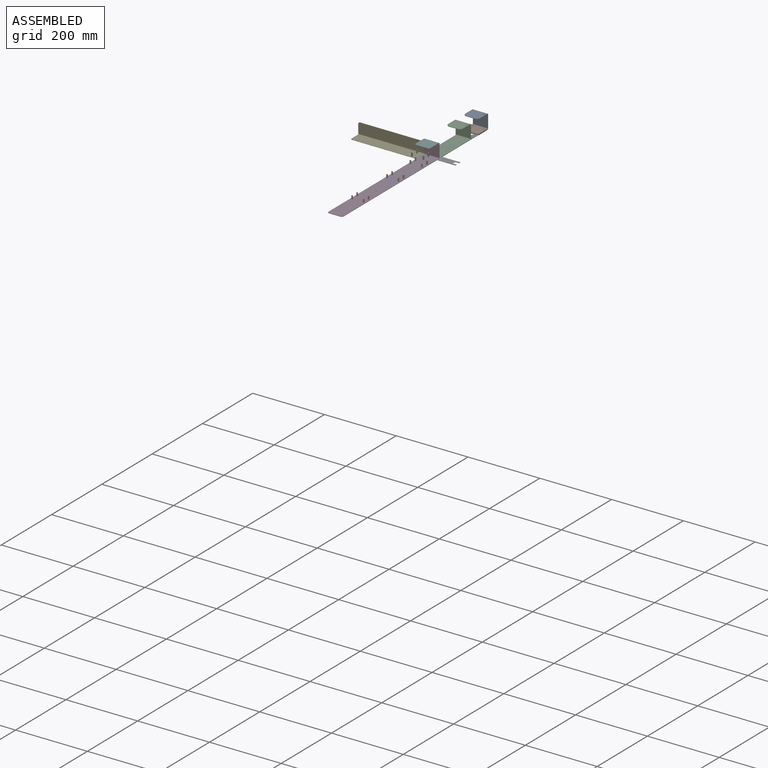
[diagram: assembled view]
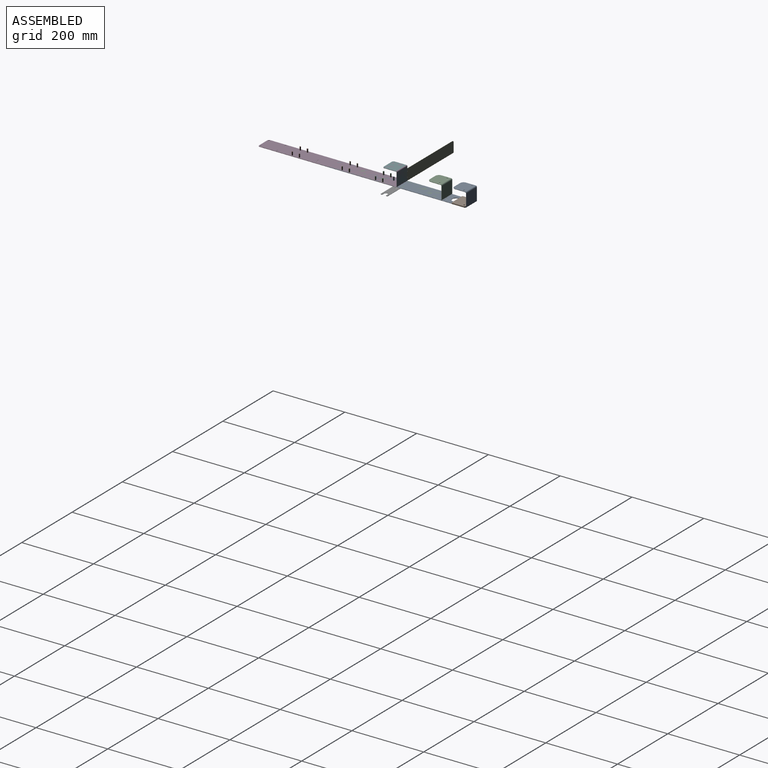
[diagram: assembled view, second angle]
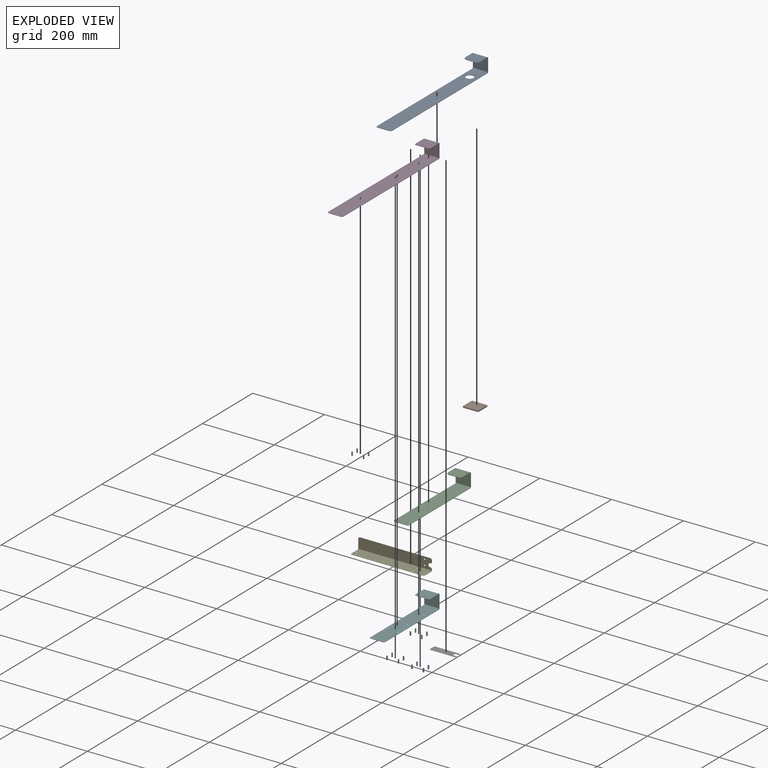
[diagram: exploded view]
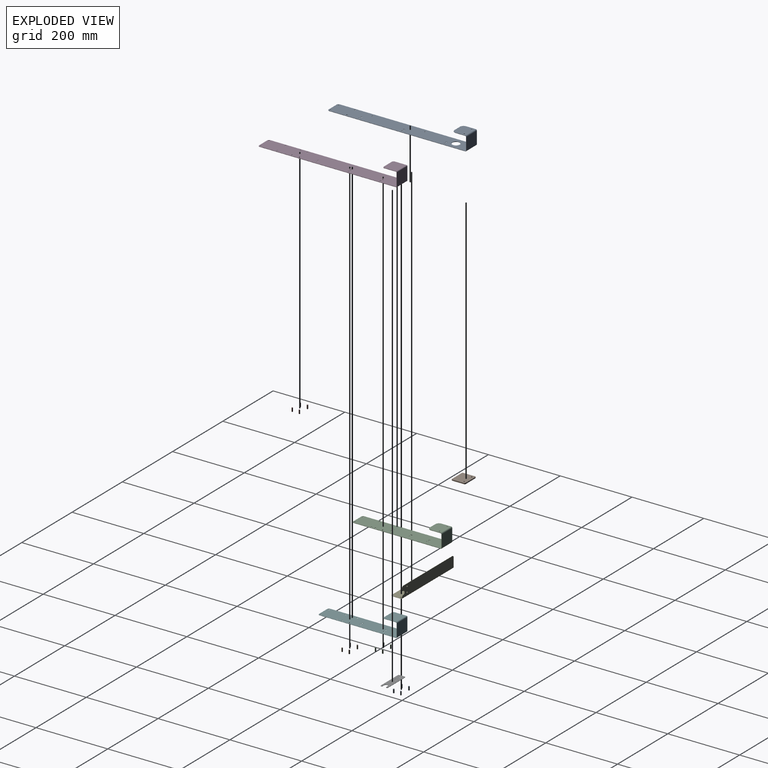
[diagram: exploded view, second angle]
FCSTD DOCUMENT  (FreeCAD 0.22R37100 (Git))
Label: pump_holder
License: All rights reserved
LicenseURL: http://en.wikipedia.org/wiki/All_rights_reserved
objects: Sketcher::SketchObject×51, Part::FeaturePython×48, TechDraw::DrawViewDimension×13, TechDraw::DrawViewPart×10, PartDesign::SubShapeBinder×9, Part::Compound×8, PartDesign::Body×8, Part::Feature×8, App::DocumentObjectGroup×8, PartDesign::FeaturePython×5, PartDesign::Pocket×5, TechDraw::DrawPage×5, PartDesign::Boolean×5, PartDesign::Fillet×4, TechDraw::DrawSVGTemplate×4, PartDesign::Hole×4, App::Link×4, PartDesign::CoordinateSystem×3, PartDesign::Pad×2, Part::Extrusion×2, +3 more types
note: 203 computed .brp shape members not serialized (recipe doc carries the construction recipe); baked Part::Feature solids carry a one-line shape summary decoded from their .brp

FEATURE [Sketcher::SketchObject] Sketch
  AttachmentSupport = -> [YZ_Plane]
  FullyConstrained = true
  MapMode = 5
  Placement = pos=(0,0,0) rot=(0.57735,0.57735,0.57735;2.0944rad)
  sketch-geometry (3):
    g0: LineSegment StartX=-193.5 StartY=0 StartZ=0 EndX=193.5 EndY=0 EndZ=0
    g1: LineSegment StartX=193.5 StartY=0 StartZ=0 EndX=193.5 EndY=40 EndZ=0
    g2: LineSegment StartX=193.5 StartY=40 StartZ=0 EndX=153.5 EndY=40 EndZ=0
  constraints (9):
    c: PointOnObject(g0,g-1)
    c: Coincident(g1,g0)
    c: Vertical(g1)
    c: Coincident(g2,g1)
    c: Horizontal(g2)
    c: DistanceY(g1,g1) = 40
    c: DistanceX(g2,g2) = 40
    c: Symmetric(g0,g0,g-2)
    c: DistanceX(g0,g0) = 387  'length'
FEATURE [PartDesign::FeaturePython] BaseBend  # WARN: FeaturePython — macro-defined, semantics opaque (R4)
  BendSide = 1
  BendSketch = -> Sketch
  MidPlane = true
  Reverse = false
  Suppressed = false
  length = 42
  radius = 2
  thickness = 1
FEATURE [Sketcher::SketchObject] Sketch002
  AttachmentOffset = pos=(0,-105.5,0) rot=(0,0,1;0rad)
  AttachmentSupport = -> [XY_Plane]
  FullyConstrained = true
  MapMode = 5
  Placement = pos=(0,-105.5,0) rot=(0,0,1;0rad)
  expr: AttachmentOffset = Binder.Placement
  sketch-geometry (1):
    g0: Circle CenterX=0 CenterY=0 CenterZ=0 NormalX=0 NormalY=0 NormalZ=1 AngleXU=0 Radius=5
  constraints (2):
    c: Coincident(g0,g-1)
    c: Diameter(g0) = 10
FEATURE [Sketcher::SketchObject] Sketch003
  FullyConstrained = true
  sketch-geometry (5):
    g0: ArcOfCircle CenterX=0 CenterY=0 CenterZ=0 NormalX=0 NormalY=0 NormalZ=1 AngleXU=0 Radius=8 StartAngle=0 EndAngle=1.5708
    g1: ArcOfCircle CenterX=0 CenterY=0 CenterZ=0 NormalX=0 NormalY=0 NormalZ=1 AngleXU=0 Radius=8.1 StartAngle=0 EndAngle=1.5708
    g2: LineSegment StartX=8 StartY=0 StartZ=0 EndX=8 EndY=-18 EndZ=0
    g3: LineSegment StartX=8 StartY=-18 StartZ=0 EndX=8.1 EndY=-18 EndZ=0
    g4: LineSegment StartX=8.1 StartY=-18 StartZ=0 EndX=8.1 EndY=0 EndZ=0
  constraints (15):
    c: Coincident(g0,g-1)
    c: PointOnObject(g0,g-2)
    c: PointOnObject(g0,g-1)
    c: Coincident(g1,g0)
    c: PointOnObject(g1,g-2)
    c: PointOnObject(g1,g-1)
    c: Tangent(g0,g2) = 1.5708
    c: Coincident(g2,g3)
    c: Horizontal(g3)
    c: Coincident(g3,g4)
    c: Coincident(g4,g1)
    c: Vertical(g4)
    c: DistanceY(g0,g1) = 0.1
    c: Diameter(g0) = 16
    c: DistanceY(g2,g2) = 18  'length'
FEATURE [Part::FeaturePython] Mirror  label="Mirror of Sketch003"  # WARN: FeaturePython — macro-defined, semantics opaque (R4)
  ExposePlacement = false
  FlipX = true
  FlipY = false
  FlipZ = false
  MarkerShape = 1
  MarkerSize = 0
  NumElements = 0
  Object = -> Sketch003
  ObjectTraversal = 0
  Type = lattice2Mirror.LatticeMirror
  isLattice = 0
FEATURE [Part::Compound] Compound
  Links = -> [Sketch003,Mirror]
FEATURE [PartDesign::SubShapeBinder] Binder
  BindCopyOnChange = 0
  BindMode = 0
  ClaimChildren = true
  Context = -> Body [Binder.]
  Fuse = false
  MakeFace = true
  OffsetFill = false
  OffsetIntersection = false
  OffsetJoinType = 0
  OffsetOpenResult = false
  PartialLoad = false
  Placement = pos=(0,-105.5,0) rot=(0,0,1;0rad)
  Relative = false
  Support = -> [Compound]
  _Version = 2
  expr: .Placement.Base.y = Local_CS.Placement.Base.y + Sketch003.Constraints.length + 70 mm
FEATURE [Sketcher::SketchObject] Sketch004
  AttachmentOffset = pos=(10,75,0) rot=(0,0,1;0rad)
  AttachmentSupport = -> [Binder]
  FullyConstrained = true
  MapMode = 5
  Placement = pos=(10,-30.5,0) rot=(0,0,1;0rad)
  expr: .AttachmentOffset.Base.y = 75 mm
  sketch-geometry (2):
    g0: Circle CenterX=5 CenterY=0 CenterZ=0 NormalX=0 NormalY=0 NormalZ=1 AngleXU=0 Radius=2
    g1: Circle CenterX=-5 CenterY=0 CenterZ=0 NormalX=0 NormalY=0 NormalZ=1 AngleXU=0 Radius=2
  constraints (5):
    c: PointOnObject(g0,g-1)
    c: Equal(g1,g0)
    c: Diameter(g1) = 4
    c: Symmetric(g1,g0,g-2)
    c: DistanceX(g1,g0) = 10
FEATURE [Sketcher::SketchObject] Sketch005
  AttachmentOffset = pos=(0,183.5,2) rot=(0,0,1;0rad)
  AttachmentSupport = -> [XY_Plane]
  FullyConstrained = true
  MapMode = 5
  Placement = pos=(0,183.5,2) rot=(0,0,1;0rad)
  expr: .AttachmentOffset.Base.y = Sketch.Constraints.length / 2 - 10 mm
  expr: .AttachmentOffset.Base.z = BaseBend.thickness + 1 mm
  sketch-geometry (2):
    g0: Circle CenterX=15 CenterY=0 CenterZ=0 NormalX=0 NormalY=0 NormalZ=1 AngleXU=0 Radius=1.65
    g1: Circle CenterX=-15 CenterY=0 CenterZ=0 NormalX=0 NormalY=0 NormalZ=1 AngleXU=0 Radius=1.65
  constraints (5):
    c: PointOnObject(g0,g-1)
    c: Equal(g1,g0)
    c: Diameter(g1) = 3.3
    c: Symmetric(g0,g1,g-2)
    c: DistanceX(g1,g0) = 30
FEATURE [PartDesign::Fillet] Fillet
  Base = -> BaseBend [Edge8,Edge10]
  BaseFeature = -> BaseBend
  Radius = 10
  SupportTransform = false
  Suppressed = false
  UseAllEdges = false
FEATURE [PartDesign::Fillet] Fillet001
  Base = -> Fillet [Edge48,Edge47]
  BaseFeature = -> Fillet
  Radius = 5
  SupportTransform = false
  Suppressed = false
  UseAllEdges = false
FEATURE [TechDraw::DrawSVGTemplate] Template
  Height = 210
  Orientation = 1
  Template = <path>
  Width = 297
FEATURE [PartDesign::Body] Body002  label="dummy_body"
  Origin = -> Origin002
FEATURE [PartDesign::SubShapeBinder] Binder001
  BindCopyOnChange = 0
  BindMode = 0
  ClaimChildren = false
  Context = -> Body001 [Binder001.]
  Fuse = false
  MakeFace = true
  OffsetFill = false
  OffsetIntersection = false
  OffsetJoinType = 0
  OffsetOpenResult = false
  PartialLoad = false
  Relative = true
  Support = -> [Body[BaseBend.Sketch.]]
  _Version = 2
FEATURE [Sketcher::SketchObject] Sketch006
  AttachmentSupport = -> [XY_Plane001]
  ExternalGeometry = -> [Binder001]
  FullyConstrained = true
  MapMode = 5
  sketch-geometry (13):
    g0: LineSegment StartX=-22 StartY=155 StartZ=0 EndX=-22 EndY=188 EndZ=0
    g1: LineSegment StartX=-19.5 StartY=190.5 StartZ=0 EndX=19.5 EndY=190.5 EndZ=0
    g2: LineSegment StartX=22 StartY=188 StartZ=0 EndX=22 EndY=155 EndZ=0
    g3: LineSegment StartX=19.5 StartY=152.5 StartZ=0 EndX=-19.5 EndY=152.5 EndZ=0
    g4: GeomPoint X=0 Y=171.5 Z=0
    g5: ArcOfCircle CenterX=19.5 CenterY=188 CenterZ=0 NormalX=0 NormalY=0 NormalZ=1 AngleXU=0 Radius=2.5 StartAngle=-3.6e-15 EndAngle=1.5708
    g6: GeomPoint X=22 Y=190.5 Z=0
    g7: ArcOfCircle CenterX=19.5 CenterY=155 CenterZ=0 NormalX=0 NormalY=0 NormalZ=1 AngleXU=0 Radius=2.5 StartAngle=4.71239 EndAngle=6.28319
    g8: GeomPoint X=22 Y=152.5 Z=0
    g9: ArcOfCircle CenterX=-19.5 CenterY=155 CenterZ=0 NormalX=0 NormalY=0 NormalZ=1 AngleXU=0 Radius=2.5 StartAngle=3.14159 EndAngle=4.71239
    g10: GeomPoint X=-22 Y=152.5 Z=0
    g11: ArcOfCircle CenterX=-19.5 CenterY=188 CenterZ=0 NormalX=0 NormalY=0 NormalZ=1 AngleXU=0 Radius=2.5 StartAngle=1.5708 EndAngle=3.14159
    g12: GeomPoint X=-22 Y=190.5 Z=0
  constraints (29):
    c: Horizontal(g1)
    c: Horizontal(g3)
    c: Vertical(g0)
    c: Vertical(g2)
    c: Symmetric(g6,g10,g4)
    c: PointOnObject(g4,g-3)
    c: Distance(g-3,g3) = 1
    c: DistanceX(g10,g8) = 44
    c: Distance(g-3,g1) = 3
    c: PointOnObject(g6,g1)
    c: PointOnObject(g6,g2)
    c: Tangent(g1,g5) = 1.5708
    c: Tangent(g2,g5) = 1.5708
    c: PointOnObject(g8,g3)
    c: PointOnObject(g8,g2)
    c: Tangent(g3,g7) = 1.5708
    c: Tangent(g2,g7) = 1.5708
    c: PointOnObject(g10,g3)
    c: PointOnObject(g10,g0)
    c: Tangent(g3,g9) = 1.5708
    c: Tangent(g0,g9) = 1.5708
    c: PointOnObject(g12,g0)
    c: PointOnObject(g12,g1)
    c: Tangent(g0,g11) = 1.5708
    c: Tangent(g1,g11) = 1.5708
    c: Equal(g9,g7)
    c: Equal(g9,g11)
    c: Equal(g9,g5)
    c: Diameter(g9) = 5
FEATURE [PartDesign::Pad] Pad
  Direction = (0,0,1)
  Length = 3
  Length2 = 10
  Profile = -> Sketch006
  ReferenceAxis = -> Sketch006 [N_Axis]
  Suppressed = false
  Type = 0
FEATURE [PartDesign::SubShapeBinder] Binder002
  BindCopyOnChange = 0
  BindMode = 0
  ClaimChildren = false
  Context = -> Body001 [Binder002.]
  Fuse = false
  MakeFace = true
  OffsetFill = false
  OffsetIntersection = false
  OffsetJoinType = 0
  OffsetOpenResult = false
  PartialLoad = false
  Relative = true
  Support = -> [Body[Hole003.Sketch005.]]
  _Version = 2
FEATURE [PartDesign::Pocket] Pocket
  BaseFeature = -> Pad
  Direction = (0,0,-1)
  Length = 5
  Length2 = 5
  Midplane = true
  Profile = -> Binder002
  Suppressed = false
  Type = 1
FEATURE [PartDesign::Body] Body001
  Group = -> [Binder001,Sketch006,Pad,Binder002,Pocket]
  Origin = -> Origin001
  Tip = -> Pocket
FEATURE [PartDesign::SubShapeBinder] Binder003
  BindCopyOnChange = 0
  BindMode = 0
  ClaimChildren = true
  Context = -> Body003 [Binder003.]
  Fuse = false
  MakeFace = true
  OffsetFill = false
  OffsetIntersection = false
  OffsetJoinType = 0
  OffsetOpenResult = false
  PartialLoad = false
  Placement = pos=(0,-37,0) rot=(0,0,1;0rad)
  Relative = false
  Support = -> [Compound001]
  _Version = 2
  expr: .Placement.Base.y = Local_CS001.Placement.Base.y + Sketch010.Constraints.length + 70 mm
FEATURE [PartDesign::CoordinateSystem] Local_CS001
  AttacherType = Attacher::AttachEngine3D
  AttachmentOffset = pos=(0,-125,0) rot=(0,0,1;0rad)
  AttachmentSupport = -> [XY_Plane003]
  MapMode = 5
  Placement = pos=(0,-125,0) rot=(0,0,1;0rad)
  expr: .AttachmentOffset.Base.y = -Sketch007.Constraints.length / 2
FEATURE [Sketcher::SketchObject] Sketch007
  AttachmentSupport = -> [YZ_Plane003]
  FullyConstrained = true
  MapMode = 5
  Placement = pos=(0,0,0) rot=(0.57735,0.57735,0.57735;2.0944rad)
  sketch-geometry (3):
    g0: LineSegment StartX=-125 StartY=0 StartZ=0 EndX=125 EndY=0 EndZ=0
    g1: LineSegment StartX=125 StartY=0 StartZ=0 EndX=125 EndY=40 EndZ=0
    g2: LineSegment StartX=125 StartY=40 StartZ=0 EndX=85 EndY=40 EndZ=0
  constraints (9):
    c: PointOnObject(g0,g-1)
    c: Coincident(g1,g0)
    c: Vertical(g1)
    c: Coincident(g2,g1)
    c: Horizontal(g2)
    c: DistanceY(g1,g1) = 40
    c: DistanceX(g2,g2) = 40
    c: Symmetric(g0,g0,g-2)
    c: DistanceX(g0,g0) = 250  'length'
FEATURE [PartDesign::FeaturePython] BaseBend001  # WARN: FeaturePython — macro-defined, semantics opaque (R4)
  BendSide = 1
  BendSketch = -> Sketch007
  MidPlane = true
  Reverse = false
  Suppressed = false
  length = 42
  radius = 2
  thickness = 1
FEATURE [PartDesign::Fillet] Fillet002
  Base = -> BaseBend001 [Edge8,Edge10]
  BaseFeature = -> BaseBend001
  Radius = 10
  SupportTransform = false
  Suppressed = false
  UseAllEdges = false
FEATURE [PartDesign::Fillet] Fillet003
  Base = -> Fillet002 [Edge48,Edge47]
  BaseFeature = -> Fillet002
  Radius = 5
  SupportTransform = false
  Suppressed = false
  UseAllEdges = false
FEATURE [Sketcher::SketchObject] Sketch008
  AttachmentOffset = pos=(0,28,0) rot=(0,0,1;0rad)
  AttachmentSupport = -> [Local_CS001]
  FullyConstrained = true
  MapMode = 5
  Placement = pos=(0,-97,0) rot=(0,0,1;0rad)
  expr: .AttachmentOffset.Base.y = .Constraints.y_distance / 2 + 5 mm
  sketch-geometry (9):
    g0: LineSegment StartX=-16 StartY=-23 StartZ=0 EndX=-16 EndY=23 EndZ=0
    g1: LineSegment StartX=-16 StartY=23 StartZ=0 EndX=16 EndY=23 EndZ=0
    g2: LineSegment StartX=16 StartY=23 StartZ=0 EndX=16 EndY=-23 EndZ=0
    g3: LineSegment StartX=16 StartY=-23 StartZ=0 EndX=-16 EndY=-23 EndZ=0
    g4: GeomPoint X=0 Y=0 Z=0
    g5: Circle CenterX=-16 CenterY=23 CenterZ=0 NormalX=0 NormalY=0 NormalZ=1 AngleXU=0 Radius=1.75
    g6: Circle CenterX=16 CenterY=23 CenterZ=0 NormalX=0 NormalY=0 NormalZ=1 AngleXU=0 Radius=1.75
    g7: Circle CenterX=16 CenterY=-23 CenterZ=0 NormalX=0 NormalY=0 NormalZ=1 AngleXU=0 Radius=1.75
    g8: Circle CenterX=-16 CenterY=-23 CenterZ=0 NormalX=0 NormalY=0 NormalZ=1 AngleXU=0 Radius=1.75
  constraints (20):
    c: Coincident(g0,g1)
    c: Coincident(g1,g2)
    c: Coincident(g2,g3)
    c: Coincident(g3,g0)
    c: Horizontal(g1)
    c: Horizontal(g3)
    c: Vertical(g0)
    c: Vertical(g2)
    c: Symmetric(g1,g0,g4)
    c: Coincident(g4,g-1)
    c: DistanceY(g2,g2) = 46  'y_distance'
    c: DistanceX(g1,g1) = 32  'x_distance'
    c: Coincident(g5,g0)
    c: Coincident(g6,g1)
    c: Coincident(g7,g2)
    c: Coincident(g8,g0)
    c: Equal(g7,g8)
    c: Equal(g7,g5)
    c: Equal(g7,g6)
    c: Diameter(g7) = 3.5
FEATURE [PartDesign::Hole] Hole004
  BaseFeature = -> Fillet003
  CustomThreadClearance = 0
  Depth = 756.527
  DepthType = 1
  Diameter = 3.5
  DrillForDepth = false
  DrillPoint = 1
  DrillPointAngle = 118
  HoleCutCountersinkAngle = 90
  HoleCutCustomValues = false
  HoleCutDepth = 0
  HoleCutDiameter = 6.1
  HoleCutType = 0
  ModelThread = false
  Profile = -> Sketch008
  Reversed = true
  Suppressed = false
  Tapered = false
  TaperedAngle = 90
  ThreadClass = 0
  ThreadDepth = 756.527
  ThreadDepthType = 0
  ThreadDirection = 0
  ThreadFit = 0
  ThreadSize = 0
  ThreadType = 0
  Threaded = false
  UseCustomThreadClearance = false
  expr: Diameter = 3.5
FEATURE [Sketcher::SketchObject] Sketch009
  AttachmentOffset = pos=(0,-37,0) rot=(0,0,1;0rad)
  AttachmentSupport = -> [XY_Plane003]
  FullyConstrained = true
  MapMode = 5
  Placement = pos=(0,-37,0) rot=(0,0,1;0rad)
  expr: AttachmentOffset = Binder003.Placement
  sketch-geometry (1):
    g0: Circle CenterX=0 CenterY=0 CenterZ=0 NormalX=0 NormalY=0 NormalZ=1 AngleXU=0 Radius=5
  constraints (2):
    c: Coincident(g0,g-1)
    c: Diameter(g0) = 10
FEATURE [Sketcher::SketchObject] Sketch010
  FullyConstrained = true
  sketch-geometry (5):
    g0: ArcOfCircle CenterX=0 CenterY=0 CenterZ=0 NormalX=0 NormalY=0 NormalZ=1 AngleXU=0 Radius=8 StartAngle=0 EndAngle=1.5708
    g1: ArcOfCircle CenterX=0 CenterY=0 CenterZ=0 NormalX=0 NormalY=0 NormalZ=1 AngleXU=0 Radius=8.1 StartAngle=0 EndAngle=1.5708
    g2: LineSegment StartX=8 StartY=0 StartZ=0 EndX=8 EndY=-18 EndZ=0
    g3: LineSegment StartX=8 StartY=-18 StartZ=0 EndX=8.1 EndY=-18 EndZ=0
    g4: LineSegment StartX=8.1 StartY=-18 StartZ=0 EndX=8.1 EndY=0 EndZ=0
  constraints (15):
    c: Coincident(g0,g-1)
    c: PointOnObject(g0,g-2)
    c: PointOnObject(g0,g-1)
    c: Coincident(g1,g0)
    c: PointOnObject(g1,g-2)
    c: PointOnObject(g1,g-1)
    c: Tangent(g0,g2) = 1.5708
    c: Coincident(g2,g3)
    c: Horizontal(g3)
    c: Coincident(g3,g4)
    c: Coincident(g4,g1)
    c: Vertical(g4)
    c: DistanceY(g0,g1) = 0.1
    c: Diameter(g0) = 16
    c: DistanceY(g2,g2) = 18  'length'
FEATURE [Part::FeaturePython] Mirror001  label="Mirror of Sketch004"  # WARN: FeaturePython — macro-defined, semantics opaque (R4)
  ExposePlacement = false
  FlipX = true
  FlipY = false
  FlipZ = false
  MarkerShape = 1
  MarkerSize = 0
  NumElements = 0
  Object = -> Sketch010
  ObjectTraversal = 0
  Type = lattice2Mirror.LatticeMirror
  isLattice = 0
FEATURE [Part::Compound] Compound001
  Links = -> [Sketch010,Mirror001]
FEATURE [Sketcher::SketchObject] Sketch011
  AttachmentOffset = pos=(0,-16,0) rot=(0,0,1;0rad)
  AttachmentSupport = -> [Binder003]
  FullyConstrained = true
  MapMode = 5
  Placement = pos=(0,-53,0) rot=(0,0,1;0rad)
  sketch-geometry (2):
    g0: Circle CenterX=5 CenterY=0 CenterZ=0 NormalX=0 NormalY=0 NormalZ=1 AngleXU=0 Radius=2
    g1: Circle CenterX=-5 CenterY=0 CenterZ=0 NormalX=0 NormalY=0 NormalZ=1 AngleXU=0 Radius=2
  constraints (5):
    c: PointOnObject(g0,g-1)
    c: Equal(g1,g0)
    c: Diameter(g1) = 4
    c: Symmetric(g1,g0,g-2)
    c: DistanceX(g1,g0) = 10
FEATURE [Sketcher::SketchObject] Sketch012
  AttachmentOffset = pos=(0,115,2) rot=(0,0,1;0rad)
  AttachmentSupport = -> [XY_Plane003]
  FullyConstrained = true
  MapMode = 5
  Placement = pos=(0,115,2) rot=(0,0,1;0rad)
  expr: .AttachmentOffset.Base.y = Sketch007.Constraints.length / 2 - 10 mm
  expr: .AttachmentOffset.Base.z = BaseBend001.thickness + 1 mm
  sketch-geometry (2):
    g0: Circle CenterX=15 CenterY=0 CenterZ=0 NormalX=0 NormalY=0 NormalZ=1 AngleXU=0 Radius=1.65
    g1: Circle CenterX=-15 CenterY=0 CenterZ=0 NormalX=0 NormalY=0 NormalZ=1 AngleXU=0 Radius=1.65
  constraints (5):
    c: PointOnObject(g0,g-1)
    c: Equal(g1,g0)
    c: Diameter(g1) = 3.3
    c: Symmetric(g0,g1,g-2)
    c: DistanceX(g1,g0) = 30
FEATURE [PartDesign::Hole] Hole006
  BaseFeature = -> Hole004
  CustomThreadClearance = 0
  Depth = 1070.26
  DepthType = 1
  Diameter = 3.3
  DrillForDepth = false
  DrillPoint = 1
  DrillPointAngle = 118
  HoleCutCountersinkAngle = 90
  HoleCutCustomValues = false
  HoleCutDepth = 0
  HoleCutDiameter = 6.1
  HoleCutType = 0
  ModelThread = false
  Profile = -> Sketch012
  Reversed = true
  Suppressed = false
  Tapered = false
  TaperedAngle = 90
  ThreadClass = 0
  ThreadDepth = 1070.26
  ThreadDepthType = 0
  ThreadDirection = 0
  ThreadFit = 0
  ThreadSize = 0
  ThreadType = 0
  Threaded = false
  UseCustomThreadClearance = false
  expr: Diameter = 3.3
FEATURE [Sketcher::SketchObject] Sketch014
  AttachmentOffset = pos=(0,150,0) rot=(0,0,1;0rad)
  AttachmentSupport = -> [XY_Plane]
  FullyConstrained = true
  MapMode = 5
  Placement = pos=(0,150,0) rot=(0,0,1;0rad)
  sketch-geometry (1):
    g0: Circle CenterX=0 CenterY=0 CenterZ=0 NormalX=0 NormalY=0 NormalZ=1 AngleXU=0 Radius=10.5
  constraints (2):
    c: Coincident(g0,g-1)
    c: Diameter(g0) = 21
FEATURE [Part::Feature] Unfold002  label="pump_holder_full_size_unfold"
  shape: bbox 42 x 445.7 x 1.124 mm, 23 faces (baked)
FEATURE [Sketcher::SketchObject] Unfold_Sketch_Outline002  label="pump_holder_full_size_Sketch_Outline"
  FullyConstrained = false
  sketch-geometry (8):
    g0: LineSegment StartX=-11 StartY=260.697 StartZ=0 EndX=11 EndY=260.697 EndZ=0
    g1: BSplineCurve PolesCount=22 KnotsCount=5 Degree=6 IsPeriodic=0
    g2: LineSegment StartX=21 StartY=-180 StartZ=0 EndX=21 EndY=250.697 EndZ=0
    g3: BSplineCurve PolesCount=26 KnotsCount=9 Degree=4 IsPeriodic=0
    g4: LineSegment StartX=-16 StartY=-185 StartZ=0 EndX=16 EndY=-185 EndZ=0
    g5: BSplineCurve PolesCount=26 KnotsCount=9 Degree=4 IsPeriodic=0
    g6: LineSegment StartX=-21 StartY=-180 StartZ=0 EndX=-21 EndY=250.697 EndZ=0
    g7: BSplineCurve PolesCount=22 KnotsCount=5 Degree=6 IsPeriodic=0
FEATURE [Sketcher::SketchObject] Unfold_Sketch_Internal002  label="pump_holder_full_size_Sketch_Internal"
  FullyConstrained = false
  sketch-geometry (13):
    g0: Circle CenterX=3e-16 CenterY=150 CenterZ=0 NormalX=0 NormalY=0 NormalZ=-1 AngleXU=3.14159 Radius=10.5
    g1: Circle CenterX=5 CenterY=128 CenterZ=0 NormalX=0 NormalY=0 NormalZ=1 AngleXU=-3.14159 Radius=2
    g2: Circle CenterX=15 CenterY=128 CenterZ=0 NormalX=0 NormalY=0 NormalZ=1 AngleXU=-3.14159 Radius=2
    g3: Circle CenterX=5 CenterY=-22 CenterZ=0 NormalX=0 NormalY=0 NormalZ=1 AngleXU=-3.14159 Radius=2
    g4: Circle CenterX=15 CenterY=-22 CenterZ=0 NormalX=0 NormalY=0 NormalZ=1 AngleXU=-3.14159 Radius=2
    g5: Circle CenterX=5 CenterY=53 CenterZ=0 NormalX=0 NormalY=0 NormalZ=1 AngleXU=-3.14159 Radius=2
    g6: Circle CenterX=15 CenterY=53 CenterZ=0 NormalX=0 NormalY=0 NormalZ=1 AngleXU=-3.14159 Radius=2
    g7: Circle CenterX=4 CenterY=-134 CenterZ=0 NormalX=0 NormalY=0 NormalZ=1 AngleXU=-3.14159 Radius=1.75
    g8: Circle CenterX=4 CenterY=-180 CenterZ=0 NormalX=0 NormalY=0 NormalZ=1 AngleXU=-3.14159 Radius=1.75
    g9: Circle CenterX=-12 CenterY=-82.5 CenterZ=0 NormalX=0 NormalY=0 NormalZ=1 AngleXU=0 Radius=1.65
    g10: Circle CenterX=-15 CenterY=230.697 CenterZ=0 NormalX=0 NormalY=0 NormalZ=-1 AngleXU=4e-16 Radius=1.65
    g11: Circle CenterX=15 CenterY=230.697 CenterZ=0 NormalX=0 NormalY=0 NormalZ=-1 AngleXU=4e-16 Radius=1.65
    g12: Circle CenterX=-12 CenterY=64.5 CenterZ=0 NormalX=0 NormalY=0 NormalZ=1 AngleXU=0 Radius=1.65
FEATURE [Sketcher::SketchObject] Unfold_Sketch_bends002  label="pump_holder_full_size_Sketch_bends"
  FullyConstrained = false
  sketch-geometry (2):
    g0: LineSegment StartX=21 StartY=221.773 StartZ=0 EndX=-21 EndY=221.773 EndZ=0
    g1: LineSegment StartX=21 StartY=183.924 StartZ=0 EndX=-21 EndY=183.924 EndZ=0
FEATURE [Sketcher::SketchObject] Unfold_Sketch002  label="pump_holder_full_size_Sketch"
  FullyConstrained = false
  sketch-geometry (21):
    g0: LineSegment StartX=-11 StartY=260.697 StartZ=0 EndX=11 EndY=260.697 EndZ=0
    g1: BSplineCurve PolesCount=22 KnotsCount=5 Degree=6 IsPeriodic=0
    g2: BSplineCurve PolesCount=22 KnotsCount=5 Degree=6 IsPeriodic=0
    g3: LineSegment StartX=-21 StartY=-180 StartZ=0 EndX=-21 EndY=250.697 EndZ=0
    g4: BSplineCurve PolesCount=26 KnotsCount=9 Degree=4 IsPeriodic=0
    g5: LineSegment StartX=-16 StartY=-185 StartZ=0 EndX=16 EndY=-185 EndZ=0
    g6: BSplineCurve PolesCount=26 KnotsCount=9 Degree=4 IsPeriodic=0
    g7: LineSegment StartX=21 StartY=-180 StartZ=0 EndX=21 EndY=250.697 EndZ=0
    g8: Circle CenterX=3e-16 CenterY=150 CenterZ=0 NormalX=0 NormalY=0 NormalZ=-1 AngleXU=3.14159 Radius=10.5
    g9: Circle CenterX=15 CenterY=-22 CenterZ=0 NormalX=0 NormalY=0 NormalZ=1 AngleXU=-3.14159 Radius=2
    g10: Circle CenterX=5 CenterY=-22 CenterZ=0 NormalX=0 NormalY=0 NormalZ=1 AngleXU=-3.14159 Radius=2
    g11: Circle CenterX=15 CenterY=53 CenterZ=0 NormalX=0 NormalY=0 NormalZ=1 AngleXU=-3.14159 Radius=2
    g12: Circle CenterX=15 CenterY=128 CenterZ=0 NormalX=0 NormalY=0 NormalZ=1 AngleXU=-3.14159 Radius=2
    g13: Circle CenterX=5 CenterY=53 CenterZ=0 NormalX=0 NormalY=0 NormalZ=1 AngleXU=-3.14159 Radius=2
    g14: Circle CenterX=5 CenterY=128 CenterZ=0 NormalX=0 NormalY=0 NormalZ=1 AngleXU=-3.14159 Radius=2
    g15: Circle CenterX=4 CenterY=-180 CenterZ=0 NormalX=0 NormalY=0 NormalZ=1 AngleXU=-3.14159 Radius=1.75
    g16: Circle CenterX=4 CenterY=-134 CenterZ=0 NormalX=0 NormalY=0 NormalZ=1 AngleXU=-3.14159 Radius=1.75
    g17: Circle CenterX=-12 CenterY=-82.5 CenterZ=0 NormalX=0 NormalY=0 NormalZ=1 AngleXU=0 Radius=1.65
    g18: Circle CenterX=15 CenterY=230.697 CenterZ=0 NormalX=0 NormalY=0 NormalZ=-1 AngleXU=4e-16 Radius=1.65
    g19: Circle CenterX=-15 CenterY=230.697 CenterZ=0 NormalX=0 NormalY=0 NormalZ=-1 AngleXU=4e-16 Radius=1.65
    g20: Circle CenterX=-12 CenterY=64.5 CenterZ=0 NormalX=0 NormalY=0 NormalZ=1 AngleXU=0 Radius=1.65
  constraints (8):
    c: Coincident(g3,g4)
    c: Coincident(g1,g3)
    c: Coincident(g4,g5)
    c: Coincident(g0,g1)
    c: Coincident(g0,g2)
    c: Coincident(g5,g6)
    c: Coincident(g6,g7)
    c: Coincident(g2,g7)
FEATURE [PartDesign::CoordinateSystem] Local_CS002
  AttacherType = Attacher::AttachEngine3D
  AttachmentOffset = pos=(0,-193.5,0) rot=(0,0,1;0rad)
  AttachmentSupport = -> [XY_Plane]
  MapMode = 5
  Placement = pos=(0,-193.5,0) rot=(0,0,1;0rad)
  expr: .AttachmentOffset.Base.y = -Sketch.Constraints.length / 2
FEATURE [Sketcher::SketchObject] Sketch001
  AttachmentOffset = pos=(0,28,0) rot=(0,0,1;0rad)
  AttachmentSupport = -> [Local_CS002]
  FullyConstrained = true
  MapMode = 5
  Placement = pos=(0,-165.5,0) rot=(0,0,1;0rad)
  expr: .AttachmentOffset.Base.y = .Constraints.y_distance / 2 + 5 mm
  sketch-geometry (9):
    g0: LineSegment StartX=-16 StartY=-23 StartZ=0 EndX=-16 EndY=23 EndZ=0
    g1: LineSegment StartX=-16 StartY=23 StartZ=0 EndX=16 EndY=23 EndZ=0
    g2: LineSegment StartX=16 StartY=23 StartZ=0 EndX=16 EndY=-23 EndZ=0
    g3: LineSegment StartX=16 StartY=-23 StartZ=0 EndX=-16 EndY=-23 EndZ=0
    g4: GeomPoint X=0 Y=0 Z=0
    g5: Circle CenterX=-16 CenterY=23 CenterZ=0 NormalX=0 NormalY=0 NormalZ=1 AngleXU=0 Radius=1.75
    g6: Circle CenterX=16 CenterY=23 CenterZ=0 NormalX=0 NormalY=0 NormalZ=1 AngleXU=0 Radius=1.75
    g7: Circle CenterX=16 CenterY=-23 CenterZ=0 NormalX=0 NormalY=0 NormalZ=1 AngleXU=0 Radius=1.75
    g8: Circle CenterX=-16 CenterY=-23 CenterZ=0 NormalX=0 NormalY=0 NormalZ=1 AngleXU=0 Radius=1.75
  constraints (20):
    c: Coincident(g0,g1)
    c: Coincident(g1,g2)
    c: Coincident(g2,g3)
    c: Coincident(g3,g0)
    c: Horizontal(g1)
    c: Horizontal(g3)
    c: Vertical(g0)
    c: Vertical(g2)
    c: Symmetric(g1,g0,g4)
    c: Coincident(g4,g-1)
    c: DistanceY(g2,g2) = 46  'y_distance'
    c: DistanceX(g1,g1) = 32  'x_distance'
    c: Coincident(g5,g0)
    c: Coincident(g6,g1)
    c: Coincident(g7,g2)
    c: Coincident(g8,g0)
    c: Equal(g7,g8)
    c: Equal(g7,g5)
    c: Equal(g7,g6)
    c: Diameter(g7) = 3.5
FEATURE [PartDesign::Hole] Hole
  BaseFeature = -> Fillet001
  CustomThreadClearance = 0
  Depth = 756.527
  DepthType = 1
  Diameter = 3.5
  DrillForDepth = false
  DrillPoint = 1
  DrillPointAngle = 118
  HoleCutCountersinkAngle = 90
  HoleCutCustomValues = false
  HoleCutDepth = 0
  HoleCutDiameter = 6.1
  HoleCutType = 0
  ModelThread = false
  Profile = -> Sketch001
  Reversed = true
  Suppressed = false
  Tapered = false
  TaperedAngle = 90
  ThreadClass = 0
  ThreadDepth = 756.527
  ThreadDepthType = 0
  ThreadDirection = 0
  ThreadFit = 0
  ThreadSize = 0
  ThreadType = 0
  Threaded = false
  UseCustomThreadClearance = false
  expr: Diameter = 3.5
FEATURE [PartDesign::CoordinateSystem] Local_CS
  AttacherType = Attacher::AttachEngine3D
  AttachmentOffset = pos=(-12,0,0) rot=(0,0,1;0rad)
  AttachmentSupport = -> [Local_CS002]
  MapMode = 5
  Placement = pos=(-12,-193.5,0) rot=(0,0,1;0rad)
FEATURE [PartDesign::Hole] Hole003
  BaseFeature = -> Hole
  CustomThreadClearance = 0
  Depth = 1070.26
  DepthType = 1
  Diameter = 3.3
  DrillForDepth = false
  DrillPoint = 1
  DrillPointAngle = 118
  HoleCutCountersinkAngle = 90
  HoleCutCustomValues = false
  HoleCutDepth = 0
  HoleCutDiameter = 6.1
  HoleCutType = 0
  ModelThread = false
  Profile = -> Sketch005
  Reversed = true
  Suppressed = false
  Tapered = false
  TaperedAngle = 90
  ThreadClass = 0
  ThreadDepth = 1070.26
  ThreadDepthType = 0
  ThreadDirection = 0
  ThreadFit = 0
  ThreadSize = 0
  ThreadType = 0
  Threaded = false
  UseCustomThreadClearance = false
  expr: Diameter = 3.3
FEATURE [Sketcher::SketchObject] Sketch013
  AttachmentOffset = pos=(0,102.5,0) rot=(0,0,1;0rad)
  AttachmentSupport = -> [Local_CS]
  FullyConstrained = true
  MapMode = 5
  Placement = pos=(-12,-91,0) rot=(0,0,1;0rad)
  sketch-geometry (2):
    g0: Circle CenterX=0 CenterY=0 CenterZ=0 NormalX=0 NormalY=0 NormalZ=1 AngleXU=0 Radius=1.65
    g1: Circle CenterX=0 CenterY=147 CenterZ=0 NormalX=0 NormalY=0 NormalZ=1 AngleXU=0 Radius=1.65
  constraints (5):
    c: Coincident(g0,g-1)
    c: PointOnObject(g1,g-2)
    c: DistanceY(g1) = 147
    c: Equal(g0,g1)
    c: Diameter(g0) = 3.3
FEATURE [PartDesign::Pocket] Pocket001
  BaseFeature = -> Hole003
  Direction = (0,0,-1)
  Length = 5
  Length2 = 5
  Midplane = true
  Profile = -> Sketch013
  ReferenceAxis = -> Sketch013 [N_Axis]
  Suppressed = false
  Type = 1
FEATURE [PartDesign::Pocket] Pocket002
  BaseFeature = -> Pocket001
  Direction = (0,0,-1)
  Length = 5
  Length2 = 5
  Profile = -> Sketch014
  ReferenceAxis = -> Sketch014 [N_Axis]
  Reversed = true
  Suppressed = false
  Type = 0
FEATURE [Sketcher::SketchObject] Sketch015
  FullyConstrained = true
  Placement = pos=(3,0,0) rot=(0,0,1;0rad)
  sketch-geometry (5):
    g0: LineSegment StartX=0 StartY=-2 StartZ=0 EndX=0 EndY=2 EndZ=0
    g1: LineSegment StartX=0 StartY=2 StartZ=0 EndX=2.5 EndY=2 EndZ=0
    g2: LineSegment StartX=2.5 StartY=2 StartZ=0 EndX=2.5 EndY=-2 EndZ=0
    g3: LineSegment StartX=2.5 StartY=-2 StartZ=0 EndX=0 EndY=-2 EndZ=0
    g4: GeomPoint X=1.25 Y=0 Z=0
  constraints (13):
    c: Coincident(g0,g1)
    c: Coincident(g1,g2)
    c: Coincident(g2,g3)
    c: Coincident(g3,g0)
    c: Horizontal(g1)
    c: Horizontal(g3)
    c: Vertical(g0)
    c: Vertical(g2)
    c: DistanceY(g2,g2) = 4
    c: DistanceX(g3,g3) = 2.5
    c: PointOnObject(g4,g-1)
    c: Symmetric(g0,g1,g4)
    c: PointOnObject(g-1,g0)
FEATURE [Part::FeaturePython] Mirror002  label="Mirror002 of Sketch015"  # WARN: FeaturePython — macro-defined, semantics opaque (R4)
  ExposePlacement = false
  FlipX = true
  FlipY = false
  FlipZ = false
  MarkerShape = 1
  MarkerSize = 0
  NumElements = 0
  Object = -> Sketch015
  ObjectTraversal = 0
  Type = lattice2Mirror.LatticeMirror
  isLattice = 0
FEATURE [Part::FeaturePython] LinearArray  # WARN: FeaturePython — macro-defined, semantics opaque (R4)
  Alignment = 0
  CellStart = A1
  Count = 3
  Dir = (0,1,0)
  DirIsDriven = true
  DistributionLaw = 0
  DrivenProperty = 1
  EndInclusive = true
  ExposePlacement = false
  GeneratorMode = 0
  MarkerShape = 1
  MarkerSize = 0
  NumElements = 3
  OrientMode = 0
  Point = (0,0,0)
  PointIsDriven = true
  Reverse = false
  SpanEnd = 237
  SpanStart = 0
  Step = 118.5
  Type = lattice2LinearArray.LinearArray
  VSGVersion = 1
  Values = 0.0 | 118.5 | 237.0
  ValuesSource = 2
  isLattice = 1
FEATURE [Part::Compound] Compound002
  Links = -> [Mirror002,Sketch015]
FEATURE [Part::FeaturePython] Populate  label="Populate LinearArray with Compound002"  # WARN: FeaturePython — macro-defined, semantics opaque (R4)
  Copying = 0
  ExposePlacement = false
  MarkerShape = 1
  MarkerSize = 0
  NumElements = 0
  Object = -> Compound002
  OutputCompounding = 1
  Placement = pos=(10,-109,0) rot=(0,0,1;0rad)
  PlacementsTo = -> LinearArray
  Referencing = 0
  Type = lattice2PopulateCopies.LatticePopulateCopies
  isLattice = 0
FEATURE [PartDesign::SubShapeBinder] Binder004
  BindCopyOnChange = 0
  BindMode = 0
  ClaimChildren = false
  Context = -> Body [Binder004.]
  Fuse = false
  MakeFace = true
  OffsetFill = false
  OffsetIntersection = false
  OffsetJoinType = 0
  OffsetOpenResult = false
  PartialLoad = false
  Relative = true
  Support = -> [Populate]
  _Version = 2
FEATURE [PartDesign::Pocket] Pocket003
  BaseFeature = -> Pocket002
  Direction = (0,0,-1)
  Length = 5
  Length2 = 5
  Profile = -> Binder004
  Reversed = true
  Suppressed = false
  Type = 0
FEATURE [PartDesign::Body] Body  label="pump_holder_full_size_material_0.45ansi"
  Group = -> [Sketch,BaseBend,Sketch001,Fillet,Fillet001,Hole,Sketch002,Binder,Sketch004,Local_CS,Sketch005,Hole003,Sketch013,Pocket001,Sketch014,Pocket002,Local_CS002,Binder004,Pocket003]
  Origin = -> Origin
  Tip = -> Pocket003
FEATURE [TechDraw::DrawViewPart] View
  CoarseView = false
  Direction = (1,0,0)
  Focus = 100
  HardHidden = false
  IsoCount = 0
  IsoHidden = false
  IsoVisible = false
  LockPosition = false
  Perspective = false
  Rotation = 0
  Scale = 0.7
  ScaleType = 2
  ScrubCount = 0
  SeamHidden = false
  SeamVisible = true
  SmoothHidden = false
  SmoothVisible = true
  Source = -> [Body]
  X = 148.5
  XDirection = (0,1,-1.19209e-07)
  Y = 153
  expr: X = Template.Width / 2
FEATURE [TechDraw::DrawViewPart] View001
  CoarseView = false
  Direction = (0,0,1)
  Focus = 100
  HardHidden = false
  IsoCount = 0
  IsoHidden = false
  IsoVisible = false
  LockPosition = false
  Perspective = false
  Rotation = -90
  Scale = 0.7
  ScaleType = 2
  ScrubCount = 0
  SeamHidden = false
  SeamVisible = true
  SmoothHidden = false
  SmoothVisible = true
  Source = -> [Body]
  X = 148.5
  XDirection = (1,0,0)
  Y = 81
  expr: X = Template.Width / 2
FEATURE [TechDraw::DrawPage] Page  label="pump_holder_full_size_page"
  KeepUpdated = true
  NextBalloonIndex = 1
  ProjectionType = 0
  Template = -> Template
  Views = -> [View,View001]
FEATURE [App::DocumentObjectGroup] Group  label="pump_holder_full_size"
  Group = -> [Body,Page,Unfold002,Unfold_Sketch002,Unfold_Sketch_Outline002,Unfold_Sketch_Internal002,Unfold_Sketch_bends002]
FEATURE [Part::Feature] Unfold  label="pump_holder_Unfold"
  shape: bbox 42 x 445.2 x 1.124 mm, 43 faces (baked)
FEATURE [Sketcher::SketchObject] Unfold_Sketch003  label="pump_holder_Unfold_Sketch"
  FullyConstrained = false
  sketch-geometry (41):
    g0: LineSegment StartX=-11 StartY=260.226 StartZ=0 EndX=11 EndY=260.226 EndZ=0
    g1: BSplineCurve PolesCount=22 KnotsCount=5 Degree=6 IsPeriodic=0
    g2: LineSegment StartX=-21 StartY=-180 StartZ=0 EndX=-21 EndY=250.226 EndZ=0
    g3: BSplineCurve PolesCount=26 KnotsCount=9 Degree=4 IsPeriodic=0
    g4: LineSegment StartX=-16 StartY=-185 StartZ=0 EndX=16 EndY=-185 EndZ=0
    g5: BSplineCurve PolesCount=26 KnotsCount=9 Degree=4 IsPeriodic=0
    g6: LineSegment StartX=21 StartY=-180 StartZ=0 EndX=21 EndY=250.226 EndZ=0
    g7: BSplineCurve PolesCount=22 KnotsCount=5 Degree=6 IsPeriodic=0
    g8: Circle CenterX=3e-16 CenterY=150 CenterZ=0 NormalX=0 NormalY=0 NormalZ=-1 AngleXU=3.14159 Radius=10.5
    g9: Circle CenterX=16 CenterY=-180 CenterZ=0 NormalX=0 NormalY=0 NormalZ=1 AngleXU=-3.14159 Radius=1.75
    g10: Circle CenterX=16 CenterY=-134 CenterZ=0 NormalX=0 NormalY=0 NormalZ=1 AngleXU=-3.14159 Radius=1.75
    g11: Circle CenterX=-16 CenterY=-180 CenterZ=0 NormalX=0 NormalY=0 NormalZ=1 AngleXU=-3.14159 Radius=1.75
    g12: Circle CenterX=-16 CenterY=-134 CenterZ=0 NormalX=0 NormalY=0 NormalZ=1 AngleXU=-3.14159 Radius=1.75
    g13: LineSegment StartX=13 StartY=-107 StartZ=0 EndX=13 EndY=-111 EndZ=0
    g14: LineSegment StartX=15.5 StartY=-107 StartZ=0 EndX=13 EndY=-107 EndZ=0
    g15: LineSegment StartX=15.5 StartY=-111 StartZ=0 EndX=15.5 EndY=-107 EndZ=0
    g16: LineSegment StartX=13 StartY=-111 StartZ=0 EndX=15.5 EndY=-111 EndZ=0
    g17: LineSegment StartX=4.5 StartY=-107 StartZ=0 EndX=7 EndY=-107 EndZ=0
    g18: LineSegment StartX=7 StartY=-107 StartZ=0 EndX=7 EndY=-111 EndZ=0
    g19: LineSegment StartX=7 StartY=-111 StartZ=0 EndX=4.5 EndY=-111 EndZ=0
    g20: LineSegment StartX=4.5 StartY=-111 StartZ=0 EndX=4.5 EndY=-107 EndZ=0
    g21: LineSegment StartX=13 StartY=11.5 StartZ=0 EndX=13 EndY=7.5 EndZ=0
    g22: LineSegment StartX=15.5 StartY=11.5 StartZ=0 EndX=13 EndY=11.5 EndZ=0
    g23: LineSegment StartX=15.5 StartY=7.5 StartZ=0 EndX=15.5 EndY=11.5 EndZ=0
    g24: LineSegment StartX=13 StartY=7.5 StartZ=0 EndX=15.5 EndY=7.5 EndZ=0
    g25: LineSegment StartX=13 StartY=130 StartZ=0 EndX=13 EndY=126 EndZ=0
    g26: LineSegment StartX=15.5 StartY=130 StartZ=0 EndX=13 EndY=130 EndZ=0
    g27: LineSegment StartX=15.5 StartY=126 StartZ=0 EndX=15.5 EndY=130 EndZ=0
    g28: LineSegment StartX=13 StartY=126 StartZ=0 EndX=15.5 EndY=126 EndZ=0
    g29: LineSegment StartX=4.5 StartY=11.5 StartZ=0 EndX=7 EndY=11.5 EndZ=0
    g30: LineSegment StartX=7 StartY=11.5 StartZ=0 EndX=7 EndY=7.5 EndZ=0
    g31: LineSegment StartX=7 StartY=7.5 StartZ=0 EndX=4.5 EndY=7.5 EndZ=0
    g32: LineSegment StartX=4.5 StartY=7.5 StartZ=0 EndX=4.5 EndY=11.5 EndZ=0
    g33: LineSegment StartX=4.5 StartY=130 StartZ=0 EndX=7 EndY=130 EndZ=0
    g34: LineSegment StartX=7 StartY=130 StartZ=0 EndX=7 EndY=126 EndZ=0
    g35: LineSegment StartX=7 StartY=126 StartZ=0 EndX=4.5 EndY=126 EndZ=0
    g36: LineSegment StartX=4.5 StartY=126 StartZ=0 EndX=4.5 EndY=130 EndZ=0
    g37: Circle CenterX=-12 CenterY=-82.5 CenterZ=0 NormalX=0 NormalY=0 NormalZ=1 AngleXU=0 Radius=1.65
    g38: Circle CenterX=15 CenterY=230.226 CenterZ=0 NormalX=0 NormalY=0 NormalZ=-1 AngleXU=4e-16 Radius=1.65
    g39: Circle CenterX=-15 CenterY=230.226 CenterZ=0 NormalX=0 NormalY=0 NormalZ=-1 AngleXU=4e-16 Radius=1.65
    g40: Circle CenterX=-12 CenterY=64.5 CenterZ=0 NormalX=0 NormalY=0 NormalZ=1 AngleXU=0 Radius=1.65
FEATURE [Sketcher::SketchObject] Unfold_Sketch_Outline003  label="Unfold_Sketch_Outline"
  FullyConstrained = false
  sketch-geometry (8):
    g0: LineSegment StartX=-11 StartY=260.226 StartZ=0 EndX=11 EndY=260.226 EndZ=0
    g1: BSplineCurve PolesCount=22 KnotsCount=5 Degree=6 IsPeriodic=0
    g2: LineSegment StartX=21 StartY=-180 StartZ=0 EndX=21 EndY=250.226 EndZ=0
    g3: BSplineCurve PolesCount=26 KnotsCount=9 Degree=4 IsPeriodic=0
    g4: LineSegment StartX=-16 StartY=-185 StartZ=0 EndX=16 EndY=-185 EndZ=0
    g5: BSplineCurve PolesCount=26 KnotsCount=9 Degree=4 IsPeriodic=0
    g6: LineSegment StartX=-21 StartY=-180 StartZ=0 EndX=-21 EndY=250.226 EndZ=0
    g7: BSplineCurve PolesCount=22 KnotsCount=5 Degree=6 IsPeriodic=0
FEATURE [Sketcher::SketchObject] Unfold_Sketch_Internal003  label="Unfold_Sketch_Internal"
  FullyConstrained = false
  sketch-geometry (33):
    g0: Circle CenterX=3e-16 CenterY=150 CenterZ=0 NormalX=0 NormalY=0 NormalZ=-1 AngleXU=3.14159 Radius=10.5
    g1: Circle CenterX=-16 CenterY=-134 CenterZ=0 NormalX=0 NormalY=0 NormalZ=1 AngleXU=-3.14159 Radius=1.75
    g2: Circle CenterX=-16 CenterY=-180 CenterZ=0 NormalX=0 NormalY=0 NormalZ=1 AngleXU=-3.14159 Radius=1.75
    g3: Circle CenterX=16 CenterY=-134 CenterZ=0 NormalX=0 NormalY=0 NormalZ=1 AngleXU=-3.14159 Radius=1.75
    g4: Circle CenterX=16 CenterY=-180 CenterZ=0 NormalX=0 NormalY=0 NormalZ=1 AngleXU=-3.14159 Radius=1.75
    g5: LineSegment StartX=4.5 StartY=130 StartZ=0 EndX=7 EndY=130 EndZ=0
    g6: LineSegment StartX=7 StartY=130 StartZ=0 EndX=7 EndY=126 EndZ=0
    g7: LineSegment StartX=7 StartY=126 StartZ=0 EndX=4.5 EndY=126 EndZ=0
    g8: LineSegment StartX=4.5 StartY=126 StartZ=0 EndX=4.5 EndY=130 EndZ=0
    g9: LineSegment StartX=4.5 StartY=11.5 StartZ=0 EndX=7 EndY=11.5 EndZ=0
    g10: LineSegment StartX=7 StartY=11.5 StartZ=0 EndX=7 EndY=7.5 EndZ=0
    g11: LineSegment StartX=7 StartY=7.5 StartZ=0 EndX=4.5 EndY=7.5 EndZ=0
    g12: LineSegment StartX=4.5 StartY=7.5 StartZ=0 EndX=4.5 EndY=11.5 EndZ=0
    g13: LineSegment StartX=13 StartY=130 StartZ=0 EndX=13 EndY=126 EndZ=0
    g14: LineSegment StartX=13 StartY=126 StartZ=0 EndX=15.5 EndY=126 EndZ=0
    g15: LineSegment StartX=15.5 StartY=126 StartZ=0 EndX=15.5 EndY=130 EndZ=0
    g16: LineSegment StartX=15.5 StartY=130 StartZ=0 EndX=13 EndY=130 EndZ=0
    g17: LineSegment StartX=13 StartY=11.5 StartZ=0 EndX=13 EndY=7.5 EndZ=0
    g18: LineSegment StartX=13 StartY=7.5 StartZ=0 EndX=15.5 EndY=7.5 EndZ=0
    g19: LineSegment StartX=15.5 StartY=7.5 StartZ=0 EndX=15.5 EndY=11.5 EndZ=0
    g20: LineSegment StartX=15.5 StartY=11.5 StartZ=0 EndX=13 EndY=11.5 EndZ=0
    g21: LineSegment StartX=4.5 StartY=-107 StartZ=0 EndX=7 EndY=-107 EndZ=0
    g22: LineSegment StartX=7 StartY=-107 StartZ=0 EndX=7 EndY=-111 EndZ=0
    g23: LineSegment StartX=7 StartY=-111 StartZ=0 EndX=4.5 EndY=-111 EndZ=0
    g24: LineSegment StartX=4.5 StartY=-111 StartZ=0 EndX=4.5 EndY=-107 EndZ=0
    g25: LineSegment StartX=13 StartY=-107 StartZ=0 EndX=13 EndY=-111 EndZ=0
    g26: LineSegment StartX=13 StartY=-111 StartZ=0 EndX=15.5 EndY=-111 EndZ=0
    g27: LineSegment StartX=15.5 StartY=-111 StartZ=0 EndX=15.5 EndY=-107 EndZ=0
    g28: LineSegment StartX=15.5 StartY=-107 StartZ=0 EndX=13 EndY=-107 EndZ=0
    g29: Circle CenterX=-12 CenterY=-82.5 CenterZ=0 NormalX=0 NormalY=0 NormalZ=1 AngleXU=0 Radius=1.65
    g30: Circle CenterX=-15 CenterY=230.226 CenterZ=0 NormalX=0 NormalY=0 NormalZ=-1 AngleXU=4e-16 Radius=1.65
    g31: Circle CenterX=15 CenterY=230.226 CenterZ=0 NormalX=0 NormalY=0 NormalZ=-1 AngleXU=4e-16 Radius=1.65
    g32: Circle CenterX=-12 CenterY=64.5 CenterZ=0 NormalX=0 NormalY=0 NormalZ=1 AngleXU=0 Radius=1.65
FEATURE [Sketcher::SketchObject] Unfold_Sketch_bends003  label="pump_holder_Unfold_Sketch_bends"
  FullyConstrained = false
  sketch-geometry (2):
    g0: LineSegment StartX=21 StartY=221.419 StartZ=0 EndX=-21 EndY=221.419 EndZ=0
    g1: LineSegment StartX=21 StartY=183.806 StartZ=0 EndX=-21 EndY=183.806 EndZ=0
FEATURE [App::DocumentObjectGroup] Group002  label="pump_holder_Unfold_Group"
  Group = -> [Unfold,Unfold_Sketch003,Unfold_Sketch_Outline003,Unfold_Sketch_Internal003,Unfold_Sketch_bends003]
FEATURE [Sketcher::SketchObject] Sketch016
  FullyConstrained = true
  sketch-geometry (3):
    g0: LineSegment StartX=40 StartY=-40 StartZ=0 EndX=40 EndY=0 EndZ=0
    g1: LineSegment StartX=40 StartY=0 StartZ=0 EndX=0 EndY=0 EndZ=0
    g2: LineSegment StartX=0 StartY=0 StartZ=0 EndX=0 EndY=-387 EndZ=0
  constraints (9):
    c: PointOnObject(g0,g-1)
    c: Vertical(g0)
    c: Coincident(g0,g1)
    c: Coincident(g1,g-1)
    c: Coincident(g1,g2)
    c: PointOnObject(g2,g-2)
    c: DistanceX(g1,g1) = 40
    c: DistanceY(g0,g0) = 40
    c: DistanceY(g2,g2) = 387  'length'
FEATURE [PartDesign::SubShapeBinder] Binder005
  BindCopyOnChange = 0
  BindMode = 0
  ClaimChildren = true
  Context = -> Body004 [Binder005.]
  Fuse = false
  MakeFace = true
  OffsetFill = false
  OffsetIntersection = false
  OffsetJoinType = 0
  OffsetOpenResult = false
  PartialLoad = false
  Placement = pos=(0,0,0) rot=(0,-1,0;1.5708rad)
  Relative = true
  Support = -> [Sketch016]
  _Version = 2
FEATURE [PartDesign::FeaturePython] BaseBend002  # WARN: FeaturePython — macro-defined, semantics opaque (R4)
  BendSide = 1
  BendSketch = -> Binder005
  MidPlane = true
  Reverse = false
  Suppressed = false
  length = 42
  radius = 1
  thickness = 1
FEATURE [Part::FeaturePython] Placment  # WARN: FeaturePython — macro-defined, semantics opaque (R4)
  AttacherType = Attacher::AttachEngine3D
  AttachmentSupport = -> [Sketch016]
  ExposePlacement = true
  MapMode = 7
  MarkerShape = 1
  MarkerSize = 50
  NumElements = 1
  Placement = pos=(40,-40,0) rot=(1,0,0;1.5708rad)
  Type = lattice2AttachablePlacement.AttachablePlacement
  isLattice = 1
FEATURE [Part::FeaturePython] Placment001  # WARN: FeaturePython — macro-defined, semantics opaque (R4)
  AttacherType = Attacher::AttachEngine3D
  AttachmentOffset = pos=(0,0,0) rot=(0,1,0;3.14159rad)
  AttachmentSupport = -> [Sketch016]
  ExposePlacement = true
  MapMode = 7
  MarkerShape = 1
  MarkerSize = 50
  NumElements = 1
  Placement = pos=(0,-387,0) rot=(-1,0,0;4.71239rad)
  Type = lattice2AttachablePlacement.AttachablePlacement
  isLattice = 1
FEATURE [Part::FeaturePython] Join  # WARN: FeaturePython — macro-defined, semantics opaque (R4)
  ExposePlacement = false
  Interleave = false
  Links = -> [Placment,Placment001]
  MarkerShape = 1
  MarkerSize = 0
  NumElements = 2
  Placement = pos=(0,0,0) rot=(0,-1,0;1.5708rad)
  Type = lattice2JoinArrays.JoinArrays
  isLattice = 1
FEATURE [Sketcher::SketchObject] Sketch017
  FullyConstrained = true
  sketch-geometry (3):
    g0: ArcOfCircle CenterX=-5 CenterY=5 CenterZ=0 NormalX=0 NormalY=0 NormalZ=1 AngleXU=0 Radius=5 StartAngle=4.71239 EndAngle=6.28319
    g1: LineSegment StartX=0 StartY=5 StartZ=0 EndX=0 EndY=0 EndZ=0
    g2: LineSegment StartX=0 StartY=0 StartZ=0 EndX=-5 EndY=0 EndZ=0
  constraints (7):
    c: PointOnObject(g0,g-1)
    c: PointOnObject(g0,g-2)
    c: Tangent(g1,g0) = 1.5708
    c: Coincident(g1,g-1)
    c: Coincident(g2,g1)
    c: Tangent(g2,g0) = 1.5708
    c: Radius(g0) = 5
FEATURE [Part::Extrusion] Extrude
  Base = -> Sketch017
  Dir = (0,0,1)
  DirMode = 2
  FaceMakerClass = Part::FaceMakerBullseye
  LengthFwd = 10
  LengthRev = 0
  Solid = true
  Symmetric = true
FEATURE [Part::FeaturePython] Placment002  # WARN: FeaturePython — macro-defined, semantics opaque (R4)
  AttacherType = Attacher::AttachEngine3D
  ExposePlacement = true
  MarkerShape = 1
  MarkerSize = 20
  NumElements = 1
  Placement = pos=(21,0,0) rot=(0,0,1;0rad)
  Type = lattice2AttachablePlacement.AttachablePlacement
  isLattice = 1
FEATURE [Part::FeaturePython] Mirror003  label="Mirror003 of Placment002"  # WARN: FeaturePython — macro-defined, semantics opaque (R4)
  ExposePlacement = false
  FlipX = true
  FlipY = false
  FlipZ = true
  MarkerShape = 1
  MarkerSize = 20
  NumElements = 1
  Object = -> Placment002
  ObjectTraversal = 0
  Type = lattice2Mirror.LatticeMirror
  isLattice = 1
FEATURE [Part::FeaturePython] Join001  # WARN: FeaturePython — macro-defined, semantics opaque (R4)
  ExposePlacement = false
  Interleave = false
  Links = -> [Placment002,Mirror003]
  MarkerShape = 1
  MarkerSize = 5
  NumElements = 2
  Placement = pos=(0,0,0) rot=(0.57735,0.57735,-0.57735;4.18879rad)
  Type = lattice2JoinArrays.JoinArrays
  isLattice = 1
FEATURE [Part::FeaturePython] Populate001  label="Populate Join001 with Extrude"  # WARN: FeaturePython — macro-defined, semantics opaque (R4)
  Copying = 0
  ExposePlacement = false
  MarkerShape = 1
  MarkerSize = 0
  NumElements = 0
  Object = -> Extrude
  OutputCompounding = 1
  PlacementsTo = -> Join001
  Referencing = 0
  Type = lattice2PopulateCopies.LatticePopulateCopies
  isLattice = 0
FEATURE [Part::FeaturePython] Populate002  label="Populate Join with Populate Join001 with Extrude"  # WARN: FeaturePython — macro-defined, semantics opaque (R4)
  Copying = 0
  ExposePlacement = false
  MarkerShape = 1
  MarkerSize = 0
  NumElements = 0
  Object = -> Populate001
  OutputCompounding = 1
  PlacementsTo = -> Join
  Referencing = 0
  Type = lattice2PopulateCopies.LatticePopulateCopies
  isLattice = 0
FEATURE [Part::Cylinder] Cylinder  label="hole_3.5_mm"
  Angle = 360
  AttacherType = Attacher::AttachEngine3D
  FirstAngle = 0
  Height = 10
  Radius = 1.75
  SecondAngle = 0
FEATURE [Part::FeaturePython] LinearArray001  # WARN: FeaturePython — macro-defined, semantics opaque (R4)
  Alignment = 0
  CellStart = A1
  Count = 2
  Dir = (1,0,0)
  DirIsDriven = true
  DistributionLaw = 0
  DrivenProperty = 1
  EndInclusive = true
  ExposePlacement = false
  GeneratorMode = 0
  MarkerShape = 1
  MarkerSize = 0
  NumElements = 2
  OrientMode = 1
  Point = (0,0,0)
  PointIsDriven = true
  Reverse = false
  SpanEnd = 32
  SpanStart = 0
  Step = 32
  Type = lattice2LinearArray.LinearArray
  VSGVersion = 1
  Values = 0.0 | 32.0
  ValuesSource = 2
  isLattice = 1
FEATURE [Part::FeaturePython] LinearArray002  # WARN: FeaturePython — macro-defined, semantics opaque (R4)
  Alignment = 0
  CellStart = A1
  Count = 2
  Dir = (0,1,0)
  DirIsDriven = true
  DistributionLaw = 0
  DrivenProperty = 1
  EndInclusive = true
  ExposePlacement = false
  GeneratorMode = 0
  MarkerShape = 1
  MarkerSize = 0
  NumElements = 2
  OrientMode = 0
  Point = (0,0,0)
  PointIsDriven = true
  Reverse = false
  SpanEnd = 46
  SpanStart = 0
  Step = 46
  Type = lattice2LinearArray.LinearArray
  VSGVersion = 1
  Values = 0.0 | 46.0
  ValuesSource = 2
  isLattice = 1
FEATURE [Part::FeaturePython] Populate003  label="Populate LinearArray002 with LinearArray001"  # WARN: FeaturePython — macro-defined, semantics opaque (R4)
  Copying = 0
  ExposePlacement = false
  MarkerShape = 1
  MarkerSize = 0
  NumElements = 4
  Object = -> LinearArray001
  OutputCompounding = 0
  Placement = pos=(-16,0,0) rot=(0,0,1;0rad)
  PlacementsTo = -> LinearArray002
  Referencing = 0
  Type = lattice2PopulateCopies.LatticePopulateCopies
  isLattice = 1
  expr: .Placement.Base.x = -<<LinearArray001>>.SpanEnd / 2
FEATURE [Part::FeaturePython] Populate004  label="Populate Populate LinearArray002 with LinearArray001 with hole_3.5_mm"  # WARN: FeaturePython — macro-defined, semantics opaque (R4)
  Copying = 0
  ExposePlacement = false
  MarkerShape = 1
  MarkerSize = 0
  NumElements = 0
  Object = -> Cylinder
  OutputCompounding = 1
  Placement = pos=(0,-382,0) rot=(0,0,1;0rad)
  PlacementsTo = -> Populate003
  Referencing = 0
  Type = lattice2PopulateCopies.LatticePopulateCopies
  isLattice = 0
  expr: .Placement.Base.y = -(<<Sketch016>>.Constraints.length - 5 mm)
FEATURE [Sketcher::SketchObject] Sketch018
  FullyConstrained = true
  sketch-geometry (2):
    g0: LineSegment StartX=0 StartY=-32 StartZ=0 EndX=0 EndY=0 EndZ=0
    g1: LineSegment StartX=0 StartY=0 StartZ=0 EndX=32 EndY=0 EndZ=0
  constraints (6):
    c: PointOnObject(g0,g-2)
    c: Coincident(g0,g-1)
    c: Coincident(g0,g1)
    c: PointOnObject(g1,g-1)
    c: DistanceY(g0,g0) = 32
    c: Equal(g1,g0)
FEATURE [PartDesign::SubShapeBinder] Binder006
  BindCopyOnChange = 0
  BindMode = 0
  ClaimChildren = true
  Context = -> Body005 [Binder006.]
  Fuse = false
  MakeFace = true
  OffsetFill = false
  OffsetIntersection = false
  OffsetJoinType = 0
  OffsetOpenResult = false
  PartialLoad = false
  Placement = pos=(0,0,0) rot=(0,-1,0;1.5708rad)
  Relative = false
  Support = -> [Sketch018]
  _Version = 2
FEATURE [PartDesign::FeaturePython] BaseBend003  # WARN: FeaturePython — macro-defined, semantics opaque (R4)
  BendSide = 0
  BendSketch = -> Binder006
  MidPlane = false
  Reverse = false
  Suppressed = false
  length = 205
  radius = 2
  thickness = 0.7
FEATURE [Part::FeaturePython] Placment004  # WARN: FeaturePython — macro-defined, semantics opaque (R4)
  AttacherType = Attacher::AttachEngine3D
  AttachmentOffset = pos=(0,0,0) rot=(0,1,0;1.5708rad)
  AttachmentSupport = -> [Sketch018]
  ExposePlacement = true
  MapMode = 7
  MarkerShape = 1
  MarkerSize = 10
  NumElements = 1
  Placement = pos=(32,0,0) rot=(1,0,0;1.5708rad)
  Type = lattice2AttachablePlacement.AttachablePlacement
  isLattice = 1
FEATURE [Part::FeaturePython] Placment003  # WARN: FeaturePython — macro-defined, semantics opaque (R4)
  AttacherType = Attacher::AttachEngine3D
  AttachmentOffset = pos=(0,0,0) rot=(0,-1,0;1.5708rad)
  AttachmentSupport = -> [Sketch018]
  ExposePlacement = true
  MapMode = 7
  MarkerShape = 1
  MarkerSize = 10
  NumElements = 1
  Placement = pos=(0,-32,0) rot=(0.57735,-0.57735,-0.57735;2.0944rad)
  Type = lattice2AttachablePlacement.AttachablePlacement
  isLattice = 1
FEATURE [Part::FeaturePython] Join002  # WARN: FeaturePython — macro-defined, semantics opaque (R4)
  ExposePlacement = false
  Interleave = false
  Links = -> [Placment003,Placment004]
  MarkerShape = 1
  MarkerSize = 0
  NumElements = 2
  Placement = pos=(0,0,0) rot=(0,-1,0;1.5708rad)
  Type = lattice2JoinArrays.JoinArrays
  isLattice = 1
FEATURE [Part::FeaturePython] Populate005  label="Populate Join002 with Extrude"  # WARN: FeaturePython — macro-defined, semantics opaque (R4)
  Copying = 0
  ExposePlacement = false
  MarkerShape = 1
  MarkerSize = 0
  NumElements = 0
  Object = -> Extrude
  OutputCompounding = 1
  PlacementsTo = -> Join002
  Referencing = 0
  Type = lattice2PopulateCopies.LatticePopulateCopies
  isLattice = 0
FEATURE [Part::FeaturePython] Mirror004  label="Mirror004 of Populate Join002 with Extrude"  # WARN: FeaturePython — macro-defined, semantics opaque (R4)
  ExposePlacement = false
  FlipX = true
  FlipY = false
  FlipZ = false
  MarkerShape = 1
  MarkerSize = 0
  NumElements = 0
  Object = -> Populate005
  ObjectTraversal = 0
  PivotPlacement = pos=(-102.5,0,0) rot=(0,0,1;0rad)
  Type = lattice2Mirror.LatticeMirror
  isLattice = 0
  expr: .PivotPlacement.Base.x = -<<BaseBend003>>.length / 2
FEATURE [Part::FeaturePython] LinearArray003  # WARN: FeaturePython — macro-defined, semantics opaque (R4)
  Alignment = 0
  CellStart = A1
  Count = 2
  Dir = (0,1,0)
  DirIsDriven = true
  DistributionLaw = 0
  DrivenProperty = 1
  EndInclusive = true
  ExposePlacement = false
  GeneratorMode = 0
  MarkerShape = 1
  MarkerSize = 0
  NumElements = 2
  OrientMode = 0
  Point = (0,0,0)
  PointIsDriven = true
  Reverse = false
  SpanEnd = 22
  SpanStart = 2
  Step = 20
  Type = lattice2LinearArray.LinearArray
  VSGVersion = 1
  Values = 2.0 | 22.0
  ValuesSource = 2
  isLattice = 1
FEATURE [Part::FeaturePython] Populate006  label="Populate LinearArray003 with LinearArray001"  # WARN: FeaturePython — macro-defined, semantics opaque (R4)
  Copying = 0
  ExposePlacement = false
  MarkerShape = 1
  MarkerSize = 0
  NumElements = 4
  Object = -> LinearArray001
  OutputCompounding = 0
  PlacementsTo = -> LinearArray003
  Referencing = 0
  Type = lattice2PopulateCopies.LatticePopulateCopies
  isLattice = 1
FEATURE [Part::FeaturePython] Populate007  label="Populate Populate LinearArray003 with LinearArray001 with hole_3.5_mm"  # WARN: FeaturePython — macro-defined, semantics opaque (R4)
  Copying = 0
  ExposePlacement = false
  MarkerShape = 1
  MarkerSize = 0
  NumElements = 0
  Object = -> Cylinder
  OutputCompounding = 1
  PlacementsTo = -> Populate006
  Referencing = 0
  Type = lattice2PopulateCopies.LatticePopulateCopies
  isLattice = 0
FEATURE [App::Link] Link  label="Populate Populate LinearArray003 with LinearArray001 with hole_3.5_mm001"
  LinkClaimChild = true
  LinkPlacement = pos=(-16,-297,0) rot=(0,0,1;0rad)
  LinkedObject = -> Populate007
  Placement = pos=(-16,-297,0) rot=(0,0,1;0rad)
  expr: .LinkPlacement.Base.x = -<<LinearArray001>>.SpanEnd / 2
  expr: .Placement.Base.y = -(<<Sketch016>>.Constraints.length - 90 mm)
FEATURE [App::Link] Link001  label="Populate Populate LinearArray003 with LinearArray001 with hole_3.5_mm002"
  LinkClaimChild = true
  LinkPlacement = pos=(-37,-29,0) rot=(0,0,1;0rad)
  LinkedObject = -> Populate007
  Placement = pos=(-37,-29,0) rot=(0,0,1;0rad)
  expr: .LinkPlacement.Base.x = -<<LinearArray001>>.SpanEnd / 2 - 42 mm / 2
FEATURE [Sketcher::SketchObject] Sketch019
  AttachmentSupport = -> [XZ_Plane005]
  FullyConstrained = true
  MapMode = 5
  Placement = pos=(0,0,0) rot=(1,0,0;1.5708rad)
  sketch-geometry (5):
    g0: ArcOfCircle CenterX=-4.99997 CenterY=4 CenterZ=0 NormalX=0 NormalY=0 NormalZ=1 AngleXU=0 Radius=4.99997 StartAngle=0 EndAngle=1.5708
    g1: ArcOfCircle CenterX=-5 CenterY=14 CenterZ=0 NormalX=0 NormalY=0 NormalZ=1 AngleXU=0 Radius=5 StartAngle=1.45946 EndAngle=4.71239
    g2: ArcOfCircle CenterX=-4 CenterY=22.9442 CenterZ=0 NormalX=0 NormalY=0 NormalZ=1 AngleXU=0 Radius=4 StartAngle=4.60105 EndAngle=6.28319
    g3: LineSegment StartX=0 StartY=4 StartZ=0 EndX=0 EndY=22.9442 EndZ=0
    g4: LineSegment StartX=-4.99999 StartY=8.99997 StartZ=0 EndX=0 EndY=8.99997 EndZ=0
  constraints (14):
    c: PointOnObject(g2,g-2)
    c: Tangent(g3,g0) = -1.5708
    c: Vertical(g3)
    c: Tangent(g3,g2) = -1.5708
    c: Tangent(g1,g0) = 1.5708
    c: Tangent(g2,g1) = 1.5708
    c: Radius(g2) = 4
    c: Tangent(g1,g3)
    c: Diameter(g1) = 10
    c: Coincident(g4,g0)
    c: PointOnObject(g4,g3)
    c: Horizontal(g4)
    c: Tangent(g4,g1)
    c: DistanceY(g0) = 4
FEATURE [Sketcher::SketchObject] Sketch020
  FullyConstrained = true
  sketch-geometry (5):
    g0: LineSegment StartX=-1.25 StartY=-2 StartZ=0 EndX=1.25 EndY=-2 EndZ=0
    g1: LineSegment StartX=1.25 StartY=-2 StartZ=0 EndX=1.25 EndY=2 EndZ=0
    g2: LineSegment StartX=1.25 StartY=2 StartZ=0 EndX=-1.25 EndY=2 EndZ=0
    g3: LineSegment StartX=-1.25 StartY=2 StartZ=0 EndX=-1.25 EndY=-2 EndZ=0
    g4: GeomPoint X=0 Y=0 Z=0
  constraints (12):
    c: Coincident(g0,g1)
    c: Coincident(g1,g2)
    c: Coincident(g2,g3)
    c: Coincident(g3,g0)
    c: Horizontal(g0)
    c: Horizontal(g2)
    c: Vertical(g1)
    c: Vertical(g3)
    c: Symmetric(g2,g0,g4)
    c: Coincident(g4,g-1)
    c: DistanceY(g1,g1) = 4
    c: DistanceX(g0,g0) = 2.5
FEATURE [Part::FeaturePython] LinearArray004  # WARN: FeaturePython — macro-defined, semantics opaque (R4)
  Alignment = 0
  CellStart = A1
  Count = 2
  Dir = (1,0,0)
  DirIsDriven = true
  DistributionLaw = 0
  DrivenProperty = 1
  EndInclusive = true
  ExposePlacement = false
  GeneratorMode = 0
  MarkerShape = 1
  MarkerSize = 0
  NumElements = 2
  OrientMode = 1
  Point = (0,0,0)
  PointIsDriven = true
  Reverse = false
  SpanEnd = 8.5
  SpanStart = 0
  Step = 8.5
  Type = lattice2LinearArray.LinearArray
  VSGVersion = 1
  Values = 0.0 | 8.5
  ValuesSource = 2
  isLattice = 1
FEATURE [Part::FeaturePython] LinearArray005  # WARN: FeaturePython — macro-defined, semantics opaque (R4)
  Alignment = 0
  CellStart = A1
  Count = 3
  Dir = (0,1,0)
  DirIsDriven = true
  DistributionLaw = 0
  DrivenProperty = 1
  EndInclusive = true
  ExposePlacement = false
  GeneratorMode = 0
  MarkerShape = 1
  MarkerSize = 0
  NumElements = 3
  OrientMode = 0
  Point = (0,0,0)
  PointIsDriven = true
  Reverse = false
  SpanEnd = 180
  SpanStart = 0
  Step = 90
  Type = lattice2LinearArray.LinearArray
  VSGVersion = 1
  Values = 0.0 | 90.0 | 180.0
  ValuesSource = 2
  isLattice = 1
FEATURE [Part::FeaturePython] Populate008  label="Populate LinearArray005 with LinearArray004"  # WARN: FeaturePython — macro-defined, semantics opaque (R4)
  Copying = 0
  ExposePlacement = false
  MarkerShape = 1
  MarkerSize = 0
  NumElements = 6
  Object = -> LinearArray004
  OutputCompounding = 0
  PlacementsTo = -> LinearArray005
  Referencing = 0
  Type = lattice2PopulateCopies.LatticePopulateCopies
  isLattice = 1
FEATURE [Part::Extrusion] Extrude001
  Base = -> Sketch020
  Dir = (0,0,1)
  DirMode = 2
  FaceMakerClass = Part::FaceMakerBullseye
  LengthFwd = 10
  LengthRev = 0
  Solid = true
  Symmetric = false
FEATURE [Part::FeaturePython] Populate009  label="Populate Populate LinearArray005 with LinearArray004 with Extrude001"  # WARN: FeaturePython — macro-defined, semantics opaque (R4)
  Copying = 0
  ExposePlacement = false
  MarkerShape = 1
  MarkerSize = 0
  NumElements = 0
  Object = -> Extrude001
  OutputCompounding = 1
  Placement = pos=(5.75,-230,0) rot=(0,0,1;0rad)
  PlacementsTo = -> Populate008
  Referencing = 0
  Type = lattice2PopulateCopies.LatticePopulateCopies
  isLattice = 0
FEATURE [Part::Compound] Compound003
  Links = -> [Populate002,Populate004,Link,Populate009]
FEATURE [PartDesign::Boolean] Boolean
  BaseFeature = -> BaseBend002
  Group = -> [Compound003]
  Suppressed = false
  Type = 1
  UsePlacement = true
FEATURE [PartDesign::Body] Body004  label="Body"
  Group = -> [Binder005,BaseBend002,Boolean]
  Origin = -> Origin004
  Tip = -> Boolean
FEATURE [Part::FeaturePython] LinearArray006  # WARN: FeaturePython — macro-defined, semantics opaque (R4)
  Alignment = 0
  CellStart = A1
  Count = 2
  Dir = (1,0,0)
  DirIsDriven = true
  DistributionLaw = 0
  DrivenProperty = 1
  EndInclusive = true
  ExposePlacement = false
  GeneratorMode = 0
  MarkerShape = 1
  MarkerSize = 0
  NumElements = 2
  OrientMode = 1
  Point = (0,0,0)
  PointIsDriven = true
  Reverse = false
  SpanEnd = 147
  SpanStart = 0
  Step = 147
  Type = lattice2LinearArray.LinearArray
  VSGVersion = 1
  Values = 0.0 | 147.0
  ValuesSource = 2
  isLattice = 1
FEATURE [Part::FeaturePython] Populate010  label="Populate LinearArray006 with hole_3.5_mm"  # WARN: FeaturePython — macro-defined, semantics opaque (R4)
  Copying = 0
  ExposePlacement = false
  MarkerShape = 1
  MarkerSize = 0
  NumElements = 0
  Object = -> Cylinder
  OutputCompounding = 1
  Placement = pos=(-199,-16,0) rot=(0,0,1;0rad)
  PlacementsTo = -> LinearArray006
  Referencing = 0
  Type = lattice2PopulateCopies.LatticePopulateCopies
  isLattice = 0
FEATURE [Sketcher::SketchObject] Sketch021  label="pump_holder_teatro_base_sketch"
  FullyConstrained = true
  sketch-geometry (3):
    g0: LineSegment StartX=40 StartY=-40 StartZ=0 EndX=40 EndY=0 EndZ=0
    g1: LineSegment StartX=40 StartY=0 StartZ=0 EndX=0 EndY=0 EndZ=0
    g2: LineSegment StartX=0 StartY=0 StartZ=0 EndX=0 EndY=-220 EndZ=0
  constraints (9):
    c: PointOnObject(g0,g-1)
    c: Vertical(g0)
    c: Coincident(g0,g1)
    c: Coincident(g1,g-1)
    c: Coincident(g1,g2)
    c: PointOnObject(g2,g-2)
    c: DistanceX(g1,g1) = 40
    c: Distance(g0) = 40
    c: DistanceY(g2,g2) = 220  'length'
FEATURE [PartDesign::SubShapeBinder] Binder007
  BindCopyOnChange = 0
  BindMode = 0
  ClaimChildren = true
  Context = -> Body006 [Binder007.]
  Fuse = false
  MakeFace = true
  OffsetFill = false
  OffsetIntersection = false
  OffsetJoinType = 0
  OffsetOpenResult = false
  PartialLoad = false
  Placement = pos=(0,0,0) rot=(0,-1,0;1.5708rad)
  Relative = false
  Support = -> [Sketch021]
  _Version = 2
FEATURE [PartDesign::FeaturePython] BaseBend004  # WARN: FeaturePython — macro-defined, semantics opaque (R4)
  BendSide = 1
  BendSketch = -> Binder007
  MidPlane = true
  Reverse = false
  Suppressed = false
  length = 42
  radius = 2
  thickness = 0.7
FEATURE [Part::FeaturePython] Placment005  # WARN: FeaturePython — macro-defined, semantics opaque (R4)
  AttacherType = Attacher::AttachEngine3D
  AttachmentSupport = -> [Sketch021]
  ExposePlacement = true
  MapMode = 7
  MarkerShape = 1
  MarkerSize = 50
  NumElements = 1
  Placement = pos=(40,-40,0) rot=(1,0,0;1.5708rad)
  Type = lattice2AttachablePlacement.AttachablePlacement
  isLattice = 1
FEATURE [Part::FeaturePython] Placment006  # WARN: FeaturePython — macro-defined, semantics opaque (R4)
  AttacherType = Attacher::AttachEngine3D
  AttachmentOffset = pos=(0,0,0) rot=(0,1,0;3.14159rad)
  AttachmentSupport = -> [Sketch021]
  ExposePlacement = true
  MapMode = 7
  MarkerShape = 1
  MarkerSize = 50
  NumElements = 1
  Placement = pos=(0,-220,0) rot=(-1,0,0;4.71239rad)
  Type = lattice2AttachablePlacement.AttachablePlacement
  isLattice = 1
FEATURE [Part::FeaturePython] Join003  # WARN: FeaturePython — macro-defined, semantics opaque (R4)
  ExposePlacement = false
  Interleave = false
  Links = -> [Placment005,Placment006]
  MarkerShape = 1
  MarkerSize = 0
  NumElements = 2
  Placement = pos=(0,0,0) rot=(0,-1,0;1.5708rad)
  Type = lattice2JoinArrays.JoinArrays
  isLattice = 1
FEATURE [Part::FeaturePython] Populate011  label="Populate Join003 with Populate Join001 with Extrude"  # WARN: FeaturePython — macro-defined, semantics opaque (R4)
  Copying = 0
  ExposePlacement = false
  MarkerShape = 1
  MarkerSize = 0
  NumElements = 0
  Object = -> Populate001
  OutputCompounding = 1
  PlacementsTo = -> Join003
  Referencing = 0
  Type = lattice2PopulateCopies.LatticePopulateCopies
  isLattice = 0
FEATURE [Part::FeaturePython] LinearArray007  # WARN: FeaturePython — macro-defined, semantics opaque (R4)
  Alignment = 0
  CellStart = A1
  Count = 2
  Dir = (0,1,0)
  DirIsDriven = true
  DistributionLaw = 0
  DrivenProperty = 1
  EndInclusive = true
  ExposePlacement = false
  GeneratorMode = 0
  MarkerShape = 1
  MarkerSize = 0
  NumElements = 2
  OrientMode = 0
  Point = (0,0,0)
  PointIsDriven = true
  Reverse = false
  SpanEnd = 65
  SpanStart = 0
  Step = 65
  Type = lattice2LinearArray.LinearArray
  VSGVersion = 1
  Values = 0.0 | 65.0
  ValuesSource = 2
  isLattice = 1
FEATURE [Part::FeaturePython] Populate012  label="Populate LinearArray007 with LinearArray004"  # WARN: FeaturePython — macro-defined, semantics opaque (R4)
  Copying = 0
  ExposePlacement = false
  MarkerShape = 1
  MarkerSize = 0
  NumElements = 4
  Object = -> LinearArray004
  OutputCompounding = 0
  PlacementsTo = -> LinearArray007
  Referencing = 0
  Type = lattice2PopulateCopies.LatticePopulateCopies
  isLattice = 1
FEATURE [Part::FeaturePython] Populate013  label="Populate Populate LinearArray007 with LinearArray004 with Extrude001"  # WARN: FeaturePython — macro-defined, semantics opaque (R4)
  Copying = 0
  ExposePlacement = false
  MarkerShape = 1
  MarkerSize = 0
  NumElements = 0
  Object = -> Extrude001
  OutputCompounding = 1
  Placement = pos=(0,-110,0) rot=(0,0,1;0rad)
  PlacementsTo = -> Populate012
  Referencing = 0
  Type = lattice2PopulateCopies.LatticePopulateCopies
  isLattice = 0
FEATURE [Part::FeaturePython] Populate014  label="Populate Populate LinearArray002 with LinearArray001 with hole_3.5_mm001"  # WARN: FeaturePython — macro-defined, semantics opaque (R4)
  Copying = 0
  ExposePlacement = false
  MarkerShape = 1
  MarkerSize = 0
  NumElements = 0
  Object = -> Cylinder
  OutputCompounding = 1
  Placement = pos=(0,-215,0) rot=(0,0,1;0rad)
  PlacementsTo = -> Populate003
  Referencing = 0
  Type = lattice2PopulateCopies.LatticePopulateCopies
  isLattice = 0
  expr: .Placement.Base.y = -<<pump_holder_teatro_base_sketch>>.Constraints.length + 5 mm
FEATURE [Sketcher::SketchObject] Sketch022
  AttachmentSupport = -> [XZ_Plane005]
  ExternalGeometry = -> [Binder006]
  FullyConstrained = true
  MapMode = 5
  Placement = pos=(0,0,0) rot=(1,0,0;1.5708rad)
  sketch-geometry (7):
    g0: LineSegment StartX=-50 StartY=32 StartZ=0 EndX=-10 EndY=32 EndZ=0
    g1: ArcOfCircle CenterX=-50 CenterY=42 CenterZ=0 NormalX=0 NormalY=0 NormalZ=1 AngleXU=0 Radius=10 StartAngle=4.71239 EndAngle=6.28319
    g2: ArcOfCircle CenterX=-10 CenterY=42 CenterZ=0 NormalX=0 NormalY=0 NormalZ=1 AngleXU=0 Radius=10 StartAngle=3.14159 EndAngle=4.71239
    g3: Circle CenterX=-30 CenterY=42 CenterZ=0 NormalX=0 NormalY=0 NormalZ=1 AngleXU=0 Radius=5
    g4: ArcOfCircle CenterX=-30 CenterY=42 CenterZ=0 NormalX=0 NormalY=0 NormalZ=1 AngleXU=0 Radius=10 StartAngle=2.84e-14 EndAngle=3.14159
    g5: LineSegment StartX=-50 StartY=32 StartZ=0 EndX=-30 EndY=42 EndZ=0
    g6: LineSegment StartX=-30 StartY=42 StartZ=0 EndX=-10 EndY=32 EndZ=0
  constraints (18):
    c: Horizontal(g0)
    c: Coincident(g1,g0)
    c: Coincident(g4,g3)
    c: Horizontal(g0,g-3)
    c: DistanceX(g0) = -10
    c: Tangent(g4,g2) = 1.5708
    c: Tangent(g4,g1) = 1.5708
    c: Equal(g2,g1)
    c: Equal(g2,g4)
    c: Coincident(g0,g5)
    c: Coincident(g5,g3)
    c: Coincident(g5,g6)
    c: Coincident(g6,g0)
    c: Equal(g5,g6)
    c: Diameter(g3) = 10
    c: Distance(g3,g4) = 5
    c: DistanceY(g0,g3) = 10
    c: Tangent(g2,g0) = -1.5708
FEATURE [App::Link] Link002  label="Populate Populate LinearArray003 with LinearArray001 with hole_3.5_mm003"
  LinkClaimChild = true
  LinkPlacement = pos=(-16,-158,0) rot=(0,0,1;0rad)
  LinkedObject = -> Populate007
  Placement = pos=(-16,-158,0) rot=(0,0,1;0rad)
FEATURE [Part::Compound] Compound005
  Links = -> [Populate011,Populate013,Populate014,Link002]
FEATURE [PartDesign::Boolean] Boolean002
  BaseFeature = -> BaseBend004
  Group = -> [Compound005]
  Suppressed = false
  Type = 1
  UsePlacement = true
FEATURE [PartDesign::Body] Body006
  Group = -> [Binder007,BaseBend004,Boolean002]
  Origin = -> Origin006
  Tip = -> Boolean002
FEATURE [Part::Feature] Unfold003
  shape: bbox 205 x 82.29 x 0.702 mm, 25 faces (baked)
FEATURE [TechDraw::DrawSVGTemplate] Template001
  Height = 210
  Orientation = 1
  Template = <path>
  Width = 297
FEATURE [TechDraw::DrawSVGTemplate] Template002
  Height = 210
  Orientation = 1
  Template = <path>
  Width = 297
FEATURE [TechDraw::DrawViewPart] View006
  CoarseView = false
  Direction = (0.57735,-0.57735,0.57735)
  Focus = 100
  HardHidden = false
  IsoCount = 0
  IsoHidden = false
  IsoVisible = false
  LockPosition = false
  Perspective = false
  Rotation = 0
  Scale = 0.7
  ScaleType = 2
  ScrubCount = 0
  SeamHidden = false
  SeamVisible = true
  SmoothHidden = false
  SmoothVisible = true
  Source = -> [Body004]
  X = 148.5
  XDirection = (0.707107,0.707107,0)
  Y = 135
FEATURE [TechDraw::DrawViewPart] View007
  CoarseView = false
  Direction = (1,0,0)
  Focus = 100
  HardHidden = false
  IsoCount = 0
  IsoHidden = false
  IsoVisible = false
  LockPosition = false
  Perspective = false
  Rotation = 0
  Scale = 0.7
  ScaleType = 2
  ScrubCount = 0
  SeamHidden = false
  SeamVisible = true
  SmoothHidden = false
  SmoothVisible = true
  Source = -> [Body004]
  X = 148.5
  XDirection = (0,1,0)
  Y = 25
FEATURE [TechDraw::DrawSVGTemplate] Template003
  Height = 210
  Orientation = 1
  Template = <path>
  Width = 297
FEATURE [TechDraw::DrawViewPart] View008
  CoarseView = false
  Direction = (0.57735,-0.57735,0.57735)
  Focus = 100
  HardHidden = false
  IsoCount = 0
  IsoHidden = false
  IsoVisible = false
  LockPosition = false
  Perspective = false
  Rotation = 0
  ScaleType = 0
  ScrubCount = 0
  SeamHidden = false
  SeamVisible = true
  SmoothHidden = false
  SmoothVisible = true
  Source = -> [Body006]
  X = 148.5
  XDirection = (0.707107,0.707107,0)
  Y = 135
FEATURE [TechDraw::DrawViewPart] View009
  CoarseView = false
  Direction = (1,0,0)
  Focus = 100
  HardHidden = false
  IsoCount = 0
  IsoHidden = false
  IsoVisible = false
  LockPosition = false
  Perspective = false
  Rotation = 0
  ScaleType = 0
  ScrubCount = 0
  SeamHidden = false
  SeamVisible = true
  SmoothHidden = false
  SmoothVisible = true
  Source = -> [Body006]
  X = 148.5
  XDirection = (0,1,0)
  Y = 35
FEATURE [TechDraw::DrawViewDimension] Dimension017
  AngleOverride = false
  Arbitrary = false
  ArbitraryTolerances = false
  BoxCorners = (2) [(-110,-20,-1e-07),(110,20,1e-07)]
  EqualTolerance = true
  ExtensionAngle = 0
  FormatSpec = %.2w
  FormatSpecOverTolerance = %+.2w
  FormatSpecUnderTolerance = %+.2w
  Inverted = false
  LineAngle = 0
  LockPosition = false
  MeasureType = 1
  OverTolerance = 0
  References2D = -> [View009]
  Rotation = 0
  ScaleType = 0
  TheoreticalExact = false
  Type = 2
  UnderTolerance = 0
  X = 130.091
  Y = 4.42008
FEATURE [TechDraw::DrawViewDimension] Dimension018
  AngleOverride = false
  Arbitrary = false
  ArbitraryTolerances = false
  BoxCorners = (2) [(-110,-20,-1e-07),(110,20,1e-07)]
  EqualTolerance = true
  ExtensionAngle = 0
  FormatSpec = %.2w
  FormatSpecOverTolerance = %+.2w
  FormatSpecUnderTolerance = %+.2w
  Inverted = false
  LineAngle = 0
  LockPosition = false
  MeasureType = 1
  OverTolerance = 0
  References2D = -> [View009]
  Rotation = 0
  ScaleType = 0
  TheoreticalExact = false
  Type = 1
  UnderTolerance = 0
  X = 89.7169
  Y = 33.8883
FEATURE [TechDraw::DrawViewDimension] Dimension019
  AngleOverride = false
  Arbitrary = false
  ArbitraryTolerances = false
  BoxCorners = (2) [(-110,-20,-1e-07),(110,20,1e-07)]
  EqualTolerance = true
  ExtensionAngle = 0
  FormatSpec = %.2w
  FormatSpecOverTolerance = %+.2w
  FormatSpecUnderTolerance = %+.2w
  Inverted = false
  LineAngle = 0
  LockPosition = false
  MeasureType = 1
  OverTolerance = 0
  References2D = -> [View009]
  Rotation = 0
  ScaleType = 0
  TheoreticalExact = false
  Type = 1
  UnderTolerance = 0
  X = 0.638672
  Y = -4.44102
FEATURE [TechDraw::DrawPage] Page004  label="pump_holder_wall_page001"
  KeepUpdated = true
  NextBalloonIndex = 1
  ProjectionType = 0
  Template = -> Template003
  Views = -> [View008,View009,Dimension017,Dimension018,Dimension019]
FEATURE [Part::Feature] Unfold005
  shape: bbox 42 x 296.6 x 0.7 mm, 34 faces (baked)
FEATURE [Sketcher::SketchObject] Unfold_Sketch006
  FullyConstrained = false
  sketch-geometry (32):
    g0: ArcOfCircle CenterX=16 CenterY=71.5827 CenterZ=0 NormalX=0 NormalY=0 NormalZ=1 AngleXU=0 Radius=5 StartAngle=0 EndAngle=1.5708
    g1: LineSegment StartX=16 StartY=76.5827 StartZ=0 EndX=-16 EndY=76.5827 EndZ=0
    g2: ArcOfCircle CenterX=-16 CenterY=71.5827 CenterZ=0 NormalX=0 NormalY=0 NormalZ=1 AngleXU=-3.14159 Radius=5 StartAngle=4.71239 EndAngle=6.28319
    g3: LineSegment StartX=-21 StartY=71.5827 StartZ=0 EndX=-21 EndY=-215 EndZ=0
    g4: ArcOfCircle CenterX=-16 CenterY=-215 CenterZ=0 NormalX=0 NormalY=0 NormalZ=1 AngleXU=-3.14159 Radius=5 StartAngle=0 EndAngle=1.5708
    g5: LineSegment StartX=16 StartY=-220 StartZ=0 EndX=-16 EndY=-220 EndZ=0
    g6: ArcOfCircle CenterX=16 CenterY=-215 CenterZ=0 NormalX=0 NormalY=0 NormalZ=1 AngleXU=0 Radius=5 StartAngle=4.71239 EndAngle=6.28319
    g7: LineSegment StartX=21 StartY=71.5827 StartZ=0 EndX=21 EndY=-215 EndZ=0
    g8: Circle CenterX=-16 CenterY=-136 CenterZ=0 NormalX=0 NormalY=0 NormalZ=-1 AngleXU=-3.14159 Radius=1.75
    g9: Circle CenterX=-16 CenterY=-156 CenterZ=0 NormalX=0 NormalY=0 NormalZ=-1 AngleXU=-3.14159 Radius=1.75
    g10: Circle CenterX=-16 CenterY=-169 CenterZ=0 NormalX=0 NormalY=0 NormalZ=-1 AngleXU=-3.14159 Radius=1.75
    g11: Circle CenterX=-16 CenterY=-215 CenterZ=0 NormalX=0 NormalY=0 NormalZ=-1 AngleXU=-3.14159 Radius=1.75
    g12: Circle CenterX=16 CenterY=-136 CenterZ=0 NormalX=0 NormalY=0 NormalZ=-1 AngleXU=-3.14159 Radius=1.75
    g13: Circle CenterX=16 CenterY=-156 CenterZ=0 NormalX=0 NormalY=0 NormalZ=-1 AngleXU=-3.14159 Radius=1.75
    g14: Circle CenterX=16 CenterY=-169 CenterZ=0 NormalX=0 NormalY=0 NormalZ=-1 AngleXU=-3.14159 Radius=1.75
    g15: Circle CenterX=16 CenterY=-215 CenterZ=0 NormalX=0 NormalY=0 NormalZ=-1 AngleXU=-3.14159 Radius=1.75
    g16: LineSegment StartX=1.25 StartY=-43 StartZ=0 EndX=1.25 EndY=-47 EndZ=0
    g17: LineSegment StartX=1.25 StartY=-47 StartZ=0 EndX=-1.25 EndY=-47 EndZ=0
    g18: LineSegment StartX=-1.25 StartY=-47 StartZ=0 EndX=-1.25 EndY=-43 EndZ=0
    g19: LineSegment StartX=-1.25 StartY=-43 StartZ=0 EndX=1.25 EndY=-43 EndZ=0
    g20: LineSegment StartX=9.75 StartY=-43 StartZ=0 EndX=9.75 EndY=-47 EndZ=0
    g21: LineSegment StartX=9.75 StartY=-47 StartZ=0 EndX=7.25 EndY=-47 EndZ=0
    g22: LineSegment StartX=7.25 StartY=-47 StartZ=0 EndX=7.25 EndY=-43 EndZ=0
    g23: LineSegment StartX=7.25 StartY=-43 StartZ=0 EndX=9.75 EndY=-43 EndZ=0
    g24: LineSegment StartX=1.25 StartY=-108 StartZ=0 EndX=1.25 EndY=-112 EndZ=0
    g25: LineSegment StartX=1.25 StartY=-112 StartZ=0 EndX=-1.25 EndY=-112 EndZ=0
    g26: LineSegment StartX=-1.25 StartY=-112 StartZ=0 EndX=-1.25 EndY=-108 EndZ=0
    g27: LineSegment StartX=-1.25 StartY=-108 StartZ=0 EndX=1.25 EndY=-108 EndZ=0
    g28: LineSegment StartX=9.75 StartY=-108 StartZ=0 EndX=9.75 EndY=-112 EndZ=0
    g29: LineSegment StartX=9.75 StartY=-112 StartZ=0 EndX=7.25 EndY=-112 EndZ=0
    g30: LineSegment StartX=7.25 StartY=-112 StartZ=0 EndX=7.25 EndY=-108 EndZ=0
    g31: LineSegment StartX=7.25 StartY=-108 StartZ=0 EndX=9.75 EndY=-108 EndZ=0
FEATURE [Sketcher::SketchObject] Unfold_Sketch_Outline006
  FullyConstrained = false
  sketch-geometry (8):
    g0: ArcOfCircle CenterX=16 CenterY=71.5827 CenterZ=0 NormalX=0 NormalY=0 NormalZ=1 AngleXU=0 Radius=5 StartAngle=0 EndAngle=1.5708
    g1: LineSegment StartX=16 StartY=76.5827 StartZ=0 EndX=-16 EndY=76.5827 EndZ=0
    g2: ArcOfCircle CenterX=-16 CenterY=71.5827 CenterZ=0 NormalX=0 NormalY=0 NormalZ=1 AngleXU=-3.14159 Radius=5 StartAngle=4.71239 EndAngle=6.28319
    g3: LineSegment StartX=-21 StartY=71.5827 StartZ=0 EndX=-21 EndY=-215 EndZ=0
    g4: ArcOfCircle CenterX=-16 CenterY=-215 CenterZ=0 NormalX=0 NormalY=0 NormalZ=1 AngleXU=-3.14159 Radius=5 StartAngle=0 EndAngle=1.5708
    g5: LineSegment StartX=16 StartY=-220 StartZ=0 EndX=-16 EndY=-220 EndZ=0
    g6: ArcOfCircle CenterX=16 CenterY=-215 CenterZ=0 NormalX=0 NormalY=0 NormalZ=1 AngleXU=0 Radius=5 StartAngle=4.71239 EndAngle=6.28319
    g7: LineSegment StartX=21 StartY=71.5827 StartZ=0 EndX=21 EndY=-215 EndZ=0
FEATURE [Sketcher::SketchObject] Unfold_Sketch_Internal006
  FullyConstrained = false
  sketch-geometry (24):
    g0: Circle CenterX=16 CenterY=-215 CenterZ=0 NormalX=0 NormalY=0 NormalZ=-1 AngleXU=-3.14159 Radius=1.75
    g1: Circle CenterX=16 CenterY=-169 CenterZ=0 NormalX=0 NormalY=0 NormalZ=-1 AngleXU=-3.14159 Radius=1.75
    g2: Circle CenterX=16 CenterY=-156 CenterZ=0 NormalX=0 NormalY=0 NormalZ=-1 AngleXU=-3.14159 Radius=1.75
    g3: Circle CenterX=16 CenterY=-136 CenterZ=0 NormalX=0 NormalY=0 NormalZ=-1 AngleXU=-3.14159 Radius=1.75
    g4: Circle CenterX=-16 CenterY=-215 CenterZ=0 NormalX=0 NormalY=0 NormalZ=-1 AngleXU=-3.14159 Radius=1.75
    g5: Circle CenterX=-16 CenterY=-169 CenterZ=0 NormalX=0 NormalY=0 NormalZ=-1 AngleXU=-3.14159 Radius=1.75
    g6: Circle CenterX=-16 CenterY=-156 CenterZ=0 NormalX=0 NormalY=0 NormalZ=-1 AngleXU=-3.14159 Radius=1.75
    g7: Circle CenterX=-16 CenterY=-136 CenterZ=0 NormalX=0 NormalY=0 NormalZ=-1 AngleXU=-3.14159 Radius=1.75
    g8: LineSegment StartX=9.75 StartY=-108 StartZ=0 EndX=9.75 EndY=-112 EndZ=0
    g9: LineSegment StartX=9.75 StartY=-112 StartZ=0 EndX=7.25 EndY=-112 EndZ=0
    g10: LineSegment StartX=7.25 StartY=-112 StartZ=0 EndX=7.25 EndY=-108 EndZ=0
    g11: LineSegment StartX=7.25 StartY=-108 StartZ=0 EndX=9.75 EndY=-108 EndZ=0
    g12: LineSegment StartX=1.25 StartY=-108 StartZ=0 EndX=1.25 EndY=-112 EndZ=0
    g13: LineSegment StartX=1.25 StartY=-112 StartZ=0 EndX=-1.25 EndY=-112 EndZ=0
    g14: LineSegment StartX=-1.25 StartY=-112 StartZ=0 EndX=-1.25 EndY=-108 EndZ=0
    g15: LineSegment StartX=-1.25 StartY=-108 StartZ=0 EndX=1.25 EndY=-108 EndZ=0
    g16: LineSegment StartX=9.75 StartY=-43 StartZ=0 EndX=9.75 EndY=-47 EndZ=0
    g17: LineSegment StartX=9.75 StartY=-47 StartZ=0 EndX=7.25 EndY=-47 EndZ=0
    g18: LineSegment StartX=7.25 StartY=-47 StartZ=0 EndX=7.25 EndY=-43 EndZ=0
    g19: LineSegment StartX=7.25 StartY=-43 StartZ=0 EndX=9.75 EndY=-43 EndZ=0
    g20: LineSegment StartX=1.25 StartY=-43 StartZ=0 EndX=1.25 EndY=-47 EndZ=0
    g21: LineSegment StartX=1.25 StartY=-47 StartZ=0 EndX=-1.25 EndY=-47 EndZ=0
    g22: LineSegment StartX=-1.25 StartY=-47 StartZ=0 EndX=-1.25 EndY=-43 EndZ=0
    g23: LineSegment StartX=-1.25 StartY=-43 StartZ=0 EndX=1.25 EndY=-43 EndZ=0
FEATURE [Sketcher::SketchObject] Unfold_Sketch_bends006
  FullyConstrained = false
  sketch-geometry (2):
    g0: LineSegment StartX=-21 StartY=37.4371 StartZ=0 EndX=21 EndY=37.4371 EndZ=0
    g1: LineSegment StartX=-21 StartY=-0.854314 StartZ=0 EndX=21 EndY=-0.854314 EndZ=0
FEATURE [App::DocumentObjectGroup] Group004  label="pump_holder_teatro_Group"
  Group = -> [Body006,Page004,Unfold005,Unfold_Sketch006,Unfold_Sketch_Outline006,Unfold_Sketch_Internal006,Unfold_Sketch_bends006]
FEATURE [App::Link] Link003  label="Populate Populate LinearArray003 with LinearArray001 with hole_3.5_mm004"
  LinkPlacement = pos=(-16,-65,0) rot=(0,0,1;0rad)
  LinkedObject = -> Populate007
  Placement = pos=(-16,-65,0) rot=(0,0,1;0rad)
FEATURE [Part::FeaturePython] LinearArray008  # WARN: FeaturePython — macro-defined, semantics opaque (R4)
  Alignment = 0
  CellStart = A1
  Count = 3
  Dir = (0,1,0)
  DirIsDriven = true
  DistributionLaw = 0
  DrivenProperty = 1
  EndInclusive = true
  ExposePlacement = false
  GeneratorMode = 0
  MarkerShape = 1
  MarkerSize = 0
  NumElements = 3
  OrientMode = 0
  Point = (0,0,0)
  PointIsDriven = true
  Reverse = false
  SpanEnd = 100
  SpanStart = 0
  Step = 50
  Type = lattice2LinearArray.LinearArray
  VSGVersion = 1
  Values = 0.0 | 50.0 | 100.0
  ValuesSource = 2
  isLattice = 1
FEATURE [Part::FeaturePython] Populate015  label="Populate LinearArray008 with LinearArray004"  # WARN: FeaturePython — macro-defined, semantics opaque (R4)
  Copying = 0
  ExposePlacement = false
  MarkerShape = 1
  MarkerSize = 0
  NumElements = 6
  Object = -> LinearArray004
  OutputCompounding = 0
  PlacementsTo = -> LinearArray008
  Referencing = 0
  Type = lattice2PopulateCopies.LatticePopulateCopies
  isLattice = 1
FEATURE [Part::FeaturePython] Populate016  label="Populate Populate LinearArray008 with LinearArray004 with Extrude001"  # WARN: FeaturePython — macro-defined, semantics opaque (R4)
  Copying = 0
  ExposePlacement = false
  MarkerShape = 1
  MarkerSize = 0
  NumElements = 0
  Object = -> Extrude001
  OutputCompounding = 1
  Placement = pos=(0,-24,0) rot=(0,0,1;0rad)
  PlacementsTo = -> Populate015
  Referencing = 0
  Type = lattice2PopulateCopies.LatticePopulateCopies
  isLattice = 0
FEATURE [Part::Compound] Compound006
  Links = -> [Link003,Populate016]
FEATURE [PartDesign::Boolean] Boolean003
  BaseFeature = -> Hole006
  Group = -> [Compound006]
  Suppressed = false
  Type = 1
  UsePlacement = true
FEATURE [PartDesign::Body] Body003  label="pump_holder_wall_material_0.45ansi"
  Group = -> [Sketch007,BaseBend001,Sketch008,Fillet002,Fillet003,Hole004,Sketch009,Binder003,Sketch011,Local_CS001,Sketch012,Hole006,Boolean003]
  Origin = -> Origin003
  Tip = -> Boolean003
FEATURE [TechDraw::DrawViewPart] View003
  CoarseView = false
  Direction = (1,0,0)
  Focus = 100
  HardHidden = false
  IsoCount = 0
  IsoHidden = false
  IsoVisible = false
  LockPosition = false
  Perspective = false
  Rotation = 0
  ScaleType = 0
  ScrubCount = 0
  SeamHidden = false
  SeamVisible = true
  SmoothHidden = false
  SmoothVisible = true
  Source = -> [Body003]
  X = 148.5
  XDirection = (0,1,0)
  Y = 65
FEATURE [TechDraw::DrawViewDimension] Dimension006
  AngleOverride = false
  Arbitrary = false
  ArbitraryTolerances = false
  BoxCorners = (2) [(-125,-20,-1e-07),(125,20,1e-07)]
  EqualTolerance = true
  ExtensionAngle = 0
  FormatSpec = %.2w
  FormatSpecOverTolerance = %+.2w
  FormatSpecUnderTolerance = %+.2w
  Inverted = false
  LineAngle = 0
  LockPosition = false
  MeasureType = 1
  OverTolerance = 0
  References2D = -> [View003]
  Rotation = 0
  ScaleType = 0
  TheoreticalExact = false
  Type = 1
  UnderTolerance = 0
  X = -0.472156
  Y = -40.5521
FEATURE [TechDraw::DrawViewDimension] Dimension007
  AngleOverride = false
  Arbitrary = false
  ArbitraryTolerances = false
  BoxCorners = (2) [(-125,-20,-1e-07),(125,20,1e-07)]
  EqualTolerance = true
  ExtensionAngle = 0
  FormatSpec = %.2w
  FormatSpecOverTolerance = %+.2w
  FormatSpecUnderTolerance = %+.2w
  Inverted = false
  LineAngle = 0
  LockPosition = false
  MeasureType = 1
  OverTolerance = 0
  References2D = -> [View003]
  Rotation = 0
  ScaleType = 0
  TheoreticalExact = false
  Type = 2
  UnderTolerance = 0
  X = 134.33
  Y = 3.86996
FEATURE [TechDraw::DrawViewDimension] Dimension008
  AngleOverride = false
  Arbitrary = false
  ArbitraryTolerances = false
  BoxCorners = (2) [(-125,-20,-1e-07),(125,20,1e-07)]
  EqualTolerance = true
  ExtensionAngle = 0
  FormatSpec = %.2w
  FormatSpecOverTolerance = %+.2w
  FormatSpecUnderTolerance = %+.2w
  Inverted = false
  LineAngle = 0
  LockPosition = false
  MeasureType = 1
  OverTolerance = 0
  References2D = -> [View003]
  Rotation = 0
  ScaleType = 0
  TheoreticalExact = false
  Type = 1
  UnderTolerance = 0
  X = 103.656
  Y = 36.6815
FEATURE [TechDraw::DrawViewDimension] Dimension010
  AngleOverride = false
  Arbitrary = false
  ArbitraryTolerances = false
  EqualTolerance = true
  ExtensionAngle = 0
  FormatSpec = R%.2w
  FormatSpecOverTolerance = %+.2w
  FormatSpecUnderTolerance = %+.2w
  Inverted = false
  LineAngle = 0
  LockPosition = false
  MeasureType = 1
  OverTolerance = 0
  References2D = -> [View003]
  Rotation = 0
  ScaleType = 0
  TheoreticalExact = false
  Type = 4
  UnderTolerance = 0
  X = 107.041
  Y = 14.4239
FEATURE [TechDraw::DrawViewDimension] Dimension011
  AngleOverride = false
  Arbitrary = false
  ArbitraryTolerances = false
  EqualTolerance = true
  ExtensionAngle = 0
  FormatSpec = R%.2w
  FormatSpecOverTolerance = %+.2w
  FormatSpecUnderTolerance = %+.2w
  Inverted = false
  LineAngle = 0
  LockPosition = false
  MeasureType = 1
  OverTolerance = 0
  References2D = -> [View003]
  Rotation = 0
  ScaleType = 0
  TheoreticalExact = false
  Type = 4
  UnderTolerance = 0
  X = 105.39
  Y = -4.52595
FEATURE [TechDraw::DrawViewPart] View010
  CoarseView = false
  Direction = (0.57735,-0.57735,0.57735)
  Focus = 100
  HardHidden = false
  IsoCount = 0
  IsoHidden = false
  IsoVisible = false
  LockPosition = false
  Perspective = false
  Rotation = 0
  Scale = 0.7
  ScaleType = 2
  ScrubCount = 0
  SeamHidden = false
  SeamVisible = true
  SmoothHidden = false
  SmoothVisible = true
  Source = -> [Body003]
  X = 148.5
  XDirection = (0.707107,0.707107,0)
  Y = 150
FEATURE [TechDraw::DrawPage] Page001  label="pump_holder_wall_page"
  KeepUpdated = true
  NextBalloonIndex = 1
  ProjectionType = 0
  Template = -> Template
  Views = -> [View003,Dimension006,Dimension007,Dimension008,Dimension010,Dimension011,View010]
FEATURE [Part::Feature] Unfold006
  shape: bbox 42 x 325.9 x 1.122 mm, 44 faces (baked)
FEATURE [Sketcher::SketchObject] Unfold_Sketch  label="Unfold_Sketch007"
  FullyConstrained = false
  sketch-geometry (42):
    g0: LineSegment StartX=-11 StartY=200.854 StartZ=0 EndX=11 EndY=200.854 EndZ=0
    g1: BSplineCurve PolesCount=22 KnotsCount=5 Degree=6 IsPeriodic=0
    g2: LineSegment StartX=-21 StartY=-120 StartZ=0 EndX=-21 EndY=190.854 EndZ=0
    g3: BSplineCurve PolesCount=26 KnotsCount=9 Degree=4 IsPeriodic=0
    g4: LineSegment StartX=-16 StartY=-125 StartZ=0 EndX=16 EndY=-125 EndZ=0
    g5: BSplineCurve PolesCount=26 KnotsCount=9 Degree=4 IsPeriodic=0
    g6: LineSegment StartX=21 StartY=-120 StartZ=0 EndX=21 EndY=190.854 EndZ=0
    g7: BSplineCurve PolesCount=22 KnotsCount=5 Degree=6 IsPeriodic=0
    g8: Circle CenterX=16 CenterY=-120 CenterZ=0 NormalX=0 NormalY=0 NormalZ=1 AngleXU=-3.14159 Radius=1.75
    g9: Circle CenterX=16 CenterY=-74 CenterZ=0 NormalX=0 NormalY=0 NormalZ=1 AngleXU=-3.14159 Radius=1.75
    g10: Circle CenterX=16 CenterY=-63 CenterZ=0 NormalX=0 NormalY=0 NormalZ=-1 AngleXU=3.14159 Radius=1.75
    g11: Circle CenterX=16 CenterY=-43 CenterZ=0 NormalX=0 NormalY=0 NormalZ=-1 AngleXU=3.14159 Radius=1.75
    g12: Circle CenterX=-16 CenterY=-43 CenterZ=0 NormalX=0 NormalY=0 NormalZ=-1 AngleXU=3.14159 Radius=1.75
    g13: Circle CenterX=-16 CenterY=-63 CenterZ=0 NormalX=0 NormalY=0 NormalZ=-1 AngleXU=3.14159 Radius=1.75
    g14: Circle CenterX=-16 CenterY=-74 CenterZ=0 NormalX=0 NormalY=0 NormalZ=1 AngleXU=-3.14159 Radius=1.75
    g15: Circle CenterX=-16 CenterY=-120 CenterZ=0 NormalX=0 NormalY=0 NormalZ=1 AngleXU=-3.14159 Radius=1.75
    g16: LineSegment StartX=9.75 StartY=28 StartZ=0 EndX=9.75 EndY=24 EndZ=0
    g17: LineSegment StartX=9.75 StartY=24 StartZ=0 EndX=7.25 EndY=24 EndZ=0
    g18: LineSegment StartX=7.25 StartY=24 StartZ=0 EndX=7.25 EndY=28 EndZ=0
    g19: LineSegment StartX=7.25 StartY=28 StartZ=0 EndX=9.75 EndY=28 EndZ=0
    g20: LineSegment StartX=1.25 StartY=78 StartZ=0 EndX=1.25 EndY=74 EndZ=0
    g21: LineSegment StartX=1.25 StartY=74 StartZ=0 EndX=-1.25 EndY=74 EndZ=0
    g22: LineSegment StartX=-1.25 StartY=74 StartZ=0 EndX=-1.25 EndY=78 EndZ=0
    g23: LineSegment StartX=-1.25 StartY=78 StartZ=0 EndX=1.25 EndY=78 EndZ=0
    g24: LineSegment StartX=1.25 StartY=28 StartZ=0 EndX=1.25 EndY=24 EndZ=0
    g25: LineSegment StartX=1.25 StartY=24 StartZ=0 EndX=-1.25 EndY=24 EndZ=0
    g26: LineSegment StartX=-1.25 StartY=24 StartZ=0 EndX=-1.25 EndY=28 EndZ=0
    g27: LineSegment StartX=-1.25 StartY=28 StartZ=0 EndX=1.25 EndY=28 EndZ=0
    g28: LineSegment StartX=1.25 StartY=-22 StartZ=0 EndX=1.25 EndY=-26 EndZ=0
    g29: LineSegment StartX=1.25 StartY=-26 StartZ=0 EndX=-1.25 EndY=-26 EndZ=0
    g30: LineSegment StartX=-1.25 StartY=-26 StartZ=0 EndX=-1.25 EndY=-22 EndZ=0
    g31: LineSegment StartX=-1.25 StartY=-22 StartZ=0 EndX=1.25 EndY=-22 EndZ=0
    g32: LineSegment StartX=9.75 StartY=78 StartZ=0 EndX=9.75 EndY=74 EndZ=0
    g33: LineSegment StartX=9.75 StartY=74 StartZ=0 EndX=7.25 EndY=74 EndZ=0
    g34: LineSegment StartX=7.25 StartY=74 StartZ=0 EndX=7.25 EndY=78 EndZ=0
    g35: LineSegment StartX=7.25 StartY=78 StartZ=0 EndX=9.75 EndY=78 EndZ=0
    g36: LineSegment StartX=9.75 StartY=-22 StartZ=0 EndX=9.75 EndY=-26 EndZ=0
    g37: LineSegment StartX=9.75 StartY=-26 StartZ=0 EndX=7.25 EndY=-26 EndZ=0
    g38: LineSegment StartX=7.25 StartY=-26 StartZ=0 EndX=7.25 EndY=-22 EndZ=0
    g39: LineSegment StartX=7.25 StartY=-22 StartZ=0 EndX=9.75 EndY=-22 EndZ=0
    g40: Circle CenterX=-15 CenterY=170.854 CenterZ=0 NormalX=0 NormalY=0 NormalZ=-1 AngleXU=4e-16 Radius=1.65
    g41: Circle CenterX=15 CenterY=170.854 CenterZ=0 NormalX=0 NormalY=0 NormalZ=-1 AngleXU=4e-16 Radius=1.65
FEATURE [Sketcher::SketchObject] Unfold_Sketch_Outline  label="Unfold_Sketch_Outline007"
  FullyConstrained = false
  sketch-geometry (8):
    g0: LineSegment StartX=-11 StartY=200.854 StartZ=0 EndX=11 EndY=200.854 EndZ=0
    g1: BSplineCurve PolesCount=22 KnotsCount=5 Degree=6 IsPeriodic=0
    g2: LineSegment StartX=21 StartY=-120 StartZ=0 EndX=21 EndY=190.854 EndZ=0
    g3: BSplineCurve PolesCount=26 KnotsCount=9 Degree=4 IsPeriodic=0
    g4: LineSegment StartX=-16 StartY=-125 StartZ=0 EndX=16 EndY=-125 EndZ=0
    g5: BSplineCurve PolesCount=26 KnotsCount=9 Degree=4 IsPeriodic=0
    g6: LineSegment StartX=-21 StartY=-120 StartZ=0 EndX=-21 EndY=190.854 EndZ=0
    g7: BSplineCurve PolesCount=22 KnotsCount=5 Degree=6 IsPeriodic=0
FEATURE [Sketcher::SketchObject] Unfold_Sketch_Internal  label="Unfold_Sketch_Internal007"
  FullyConstrained = false
  sketch-geometry (34):
    g0: Circle CenterX=-16 CenterY=-120 CenterZ=0 NormalX=0 NormalY=0 NormalZ=1 AngleXU=-3.14159 Radius=1.75
    g1: Circle CenterX=-16 CenterY=-74 CenterZ=0 NormalX=0 NormalY=0 NormalZ=1 AngleXU=-3.14159 Radius=1.75
    g2: Circle CenterX=-16 CenterY=-63 CenterZ=0 NormalX=0 NormalY=0 NormalZ=-1 AngleXU=3.14159 Radius=1.75
    g3: Circle CenterX=-16 CenterY=-43 CenterZ=0 NormalX=0 NormalY=0 NormalZ=-1 AngleXU=3.14159 Radius=1.75
    g4: Circle CenterX=16 CenterY=-43 CenterZ=0 NormalX=0 NormalY=0 NormalZ=-1 AngleXU=3.14159 Radius=1.75
    g5: Circle CenterX=16 CenterY=-63 CenterZ=0 NormalX=0 NormalY=0 NormalZ=-1 AngleXU=3.14159 Radius=1.75
    g6: Circle CenterX=16 CenterY=-74 CenterZ=0 NormalX=0 NormalY=0 NormalZ=1 AngleXU=-3.14159 Radius=1.75
    g7: Circle CenterX=16 CenterY=-120 CenterZ=0 NormalX=0 NormalY=0 NormalZ=1 AngleXU=-3.14159 Radius=1.75
    g8: LineSegment StartX=9.75 StartY=-22 StartZ=0 EndX=9.75 EndY=-26 EndZ=0
    g9: LineSegment StartX=9.75 StartY=-26 StartZ=0 EndX=7.25 EndY=-26 EndZ=0
    g10: LineSegment StartX=7.25 StartY=-26 StartZ=0 EndX=7.25 EndY=-22 EndZ=0
    g11: LineSegment StartX=7.25 StartY=-22 StartZ=0 EndX=9.75 EndY=-22 EndZ=0
    g12: LineSegment StartX=9.75 StartY=78 StartZ=0 EndX=9.75 EndY=74 EndZ=0
    g13: LineSegment StartX=9.75 StartY=74 StartZ=0 EndX=7.25 EndY=74 EndZ=0
    g14: LineSegment StartX=7.25 StartY=74 StartZ=0 EndX=7.25 EndY=78 EndZ=0
    g15: LineSegment StartX=7.25 StartY=78 StartZ=0 EndX=9.75 EndY=78 EndZ=0
    g16: LineSegment StartX=1.25 StartY=-22 StartZ=0 EndX=1.25 EndY=-26 EndZ=0
    g17: LineSegment StartX=1.25 StartY=-26 StartZ=0 EndX=-1.25 EndY=-26 EndZ=0
    g18: LineSegment StartX=-1.25 StartY=-26 StartZ=0 EndX=-1.25 EndY=-22 EndZ=0
    g19: LineSegment StartX=-1.25 StartY=-22 StartZ=0 EndX=1.25 EndY=-22 EndZ=0
    g20: LineSegment StartX=1.25 StartY=28 StartZ=0 EndX=1.25 EndY=24 EndZ=0
    g21: LineSegment StartX=1.25 StartY=24 StartZ=0 EndX=-1.25 EndY=24 EndZ=0
    g22: LineSegment StartX=-1.25 StartY=24 StartZ=0 EndX=-1.25 EndY=28 EndZ=0
    g23: LineSegment StartX=-1.25 StartY=28 StartZ=0 EndX=1.25 EndY=28 EndZ=0
    g24: LineSegment StartX=1.25 StartY=78 StartZ=0 EndX=1.25 EndY=74 EndZ=0
    g25: LineSegment StartX=1.25 StartY=74 StartZ=0 EndX=-1.25 EndY=74 EndZ=0
    g26: LineSegment StartX=-1.25 StartY=74 StartZ=0 EndX=-1.25 EndY=78 EndZ=0
    g27: LineSegment StartX=-1.25 StartY=78 StartZ=0 EndX=1.25 EndY=78 EndZ=0
    g28: LineSegment StartX=9.75 StartY=28 StartZ=0 EndX=9.75 EndY=24 EndZ=0
    g29: LineSegment StartX=9.75 StartY=24 StartZ=0 EndX=7.25 EndY=24 EndZ=0
    g30: LineSegment StartX=7.25 StartY=24 StartZ=0 EndX=7.25 EndY=28 EndZ=0
    g31: LineSegment StartX=7.25 StartY=28 StartZ=0 EndX=9.75 EndY=28 EndZ=0
    g32: Circle CenterX=15 CenterY=170.854 CenterZ=0 NormalX=0 NormalY=0 NormalZ=-1 AngleXU=4e-16 Radius=1.65
    g33: Circle CenterX=-15 CenterY=170.854 CenterZ=0 NormalX=0 NormalY=0 NormalZ=-1 AngleXU=4e-16 Radius=1.65
FEATURE [Sketcher::SketchObject] Unfold_Sketch_bends  label="Unfold_Sketch_bends007"
  FullyConstrained = false
  sketch-geometry (2):
    g0: LineSegment StartX=21 StartY=161.89 StartZ=0 EndX=-21 EndY=161.89 EndZ=0
    g1: LineSegment StartX=21 StartY=123.963 StartZ=0 EndX=-21 EndY=123.963 EndZ=0
FEATURE [App::DocumentObjectGroup] Group001  label="pump_holder_wall"
  Group = -> [Body003,Page001,Unfold006,Unfold_Sketch,Unfold_Sketch_Outline,Unfold_Sketch_Internal,Unfold_Sketch_bends]
FEATURE [Sketcher::SketchObject] Sketch023
  FullyConstrained = true
  sketch-geometry (7):
    g0: ArcOfCircle CenterX=3 CenterY=7 CenterZ=0 NormalX=0 NormalY=0 NormalZ=1 AngleXU=0 Radius=3 StartAngle=1.5708 EndAngle=3.14159
    g1: ArcOfCircle CenterX=65 CenterY=0 CenterZ=0 NormalX=0 NormalY=0 NormalZ=1 AngleXU=0 Radius=5 StartAngle=1.5708 EndAngle=3.14159
    g2: ArcOfCircle CenterX=70.5 CenterY=7.5 CenterZ=0 NormalX=0 NormalY=0 NormalZ=1 AngleXU=0 Radius=2.5 StartAngle=4.71239 EndAngle=7.85398
    g3: LineSegment StartX=3 StartY=10 StartZ=0 EndX=70.5 EndY=10 EndZ=0
    g4: LineSegment StartX=65 StartY=5 StartZ=0 EndX=70.5 EndY=5 EndZ=0
    g5: GeomPoint X=73 Y=7.5 Z=0
    g6: LineSegment StartX=0 StartY=7 StartZ=0 EndX=0 EndY=0 EndZ=0
  constraints (18):
    c: PointOnObject(g1,g-1)
    c: PointOnObject(g1,g-1)
    c: Horizontal(g4)
    c: Horizontal(g3)
    c: Diameter(g1) = 10
    c: Tangent(g4,g1) = 1.5708
    c: Tangent(g4,g2) = -1.5708
    c: Tangent(g3,g2) = 1.5708
    c: DistanceY(g1,g0) = 5
    c: PointOnObject(g5,g2)
    c: Horizontal(g2,g5)
    c: DistanceX(g1,g5) = 8
    c: DistanceX(g1) = 65
    c: Tangent(g3,g0) = 1.5708
    c: Coincident(g6,g-1)
    c: Tangent(g6,g0) = -1.5708
    c: PointOnObject(g0,g-2)
    c: Radius(g0) = 3
FEATURE [Part::Mirroring] Part__Mirroring  label="Sketch023 (Mirror #1)"
  Base = (0,0,0)
  Normal = (0,1,0)
  Source = -> Sketch023
FEATURE [Part::FeaturePython] Connect  # WARN: FeaturePython — macro-defined, semantics opaque (R4)
  Objects = -> [Sketch023,Part__Mirroring]
  Tolerance = 0
FEATURE [PartDesign::SubShapeBinder] Binder008
  BindCopyOnChange = 0
  BindMode = 0
  ClaimChildren = true
  Context = -> Body007 [Binder008.]
  Fuse = false
  MakeFace = true
  OffsetFill = false
  OffsetIntersection = false
  OffsetJoinType = 0
  OffsetOpenResult = false
  PartialLoad = false
  Relative = false
  Support = -> [Connect]
  _Version = 2
FEATURE [PartDesign::Pad] Pad001
  Direction = (0,0,1)
  Length = 0.7
  Length2 = 10
  Profile = -> Binder008
  Suppressed = false
  Type = 0
FEATURE [Part::FeaturePython] LinearArray009  # WARN: FeaturePython — macro-defined, semantics opaque (R4)
  Alignment = 0
  CellStart = A1
  Count = 2
  Dir = (1,0,0)
  DirIsDriven = true
  DistributionLaw = 0
  DrivenProperty = 1
  EndInclusive = true
  ExposePlacement = false
  GeneratorMode = 0
  MarkerShape = 1
  MarkerSize = 0
  NumElements = 2
  OrientMode = 1
  Point = (0,0,0)
  PointIsDriven = true
  Reverse = false
  SpanEnd = 25
  SpanStart = 10
  Step = 15
  Type = lattice2LinearArray.LinearArray
  VSGVersion = 1
  Values = 10.0 | 25.0
  ValuesSource = 2
  isLattice = 1
FEATURE [Part::FeaturePython] Populate017  label="Populate LinearArray009 with hole_3.5_mm"  # WARN: FeaturePython — macro-defined, semantics opaque (R4)
  Copying = 0
  ExposePlacement = false
  MarkerShape = 1
  MarkerSize = 0
  NumElements = 0
  Object = -> Cylinder
  OutputCompounding = 1
  PlacementsTo = -> LinearArray009
  Referencing = 0
  Type = lattice2PopulateCopies.LatticePopulateCopies
  isLattice = 0
FEATURE [Part::Compound] Compound007
  Links = -> [Populate017]
FEATURE [PartDesign::Boolean] Boolean004
  BaseFeature = -> Pad001
  Group = -> [Compound007]
  Suppressed = false
  Type = 1
  UsePlacement = true
FEATURE [PartDesign::Body] Body007
  Group = -> [Binder008,Pad001,Boolean004]
  Origin = -> Origin007
  Tip = -> Boolean004
FEATURE [Part::FeaturePython] Placment007  # WARN: FeaturePython — macro-defined, semantics opaque (R4)
  AttacherType = Attacher::AttachEngine3D
  ExposePlacement = true
  MarkerShape = 1
  MarkerSize = 5
  NumElements = 1
  Placement = pos=(-20,1,0) rot=(0.57735,-0.57735,0.57735;2.0944rad)
  Type = lattice2AttachablePlacement.AttachablePlacement
  isLattice = 1
FEATURE [Part::FeaturePython] Populate018  label="Populate Placment007 with LinearArray009"  # WARN: FeaturePython — macro-defined, semantics opaque (R4)
  Copying = 0
  ExposePlacement = false
  MarkerShape = 1
  MarkerSize = 0
  NumElements = 2
  Object = -> LinearArray009
  OutputCompounding = 0
  PlacementsTo = -> Placment007
  Referencing = 0
  Type = lattice2PopulateCopies.LatticePopulateCopies
  isLattice = 1
FEATURE [Part::FeaturePython] Populate019  label="Populate Populate Placment007 with LinearArray009 with hole_3.5_mm"  # WARN: FeaturePython — macro-defined, semantics opaque (R4)
  Copying = 0
  ExposePlacement = false
  MarkerShape = 1
  MarkerSize = 0
  NumElements = 0
  Object = -> Cylinder
  OutputCompounding = 1
  PlacementsTo = -> Populate018
  Referencing = 0
  Type = lattice2PopulateCopies.LatticePopulateCopies
  isLattice = 0
FEATURE [Part::Compound] Compound004
  Links = -> [Mirror004,Populate005,Link001,Populate010,Populate019]
FEATURE [PartDesign::Boolean] Boolean001
  BaseFeature = -> BaseBend003
  Group = -> [Compound004]
  Suppressed = false
  Type = 1
  UsePlacement = true
FEATURE [PartDesign::Pocket] Pocket004
  BaseFeature = -> Boolean001
  Direction = (0,1,-2e-16)
  Length = 5
  Length2 = 5
  Midplane = true
  Profile = -> Sketch019
  ReferenceAxis = -> Sketch019 [N_Axis]
  Suppressed = false
  Type = 0
FEATURE [PartDesign::Body] Body005
  Group = -> [Binder006,BaseBend003,Boolean001,Sketch019,Pocket004,Sketch022]
  Origin = -> Origin005
  Tip = -> Pocket004
FEATURE [Part::Feature] Unfold007
  shape: bbox 73 x 20 x 0.7 mm, 14 faces (baked)
FEATURE [Sketcher::SketchObject] Unfold_Sketch007  label="Unfold_Sketch008"
  FullyConstrained = false
  sketch-geometry (13):
    g0: LineSegment StartX=0 StartY=-7 StartZ=0 EndX=0 EndY=7 EndZ=0
    g1: ArcOfCircle CenterX=3 CenterY=7 CenterZ=0 NormalX=0 NormalY=0 NormalZ=1 AngleXU=0 Radius=3 StartAngle=1.5708 EndAngle=3.14159
    g2: ArcOfCircle CenterX=3 CenterY=-7 CenterZ=0 NormalX=0 NormalY=0 NormalZ=1 AngleXU=0 Radius=3 StartAngle=3.14159 EndAngle=4.71239
    g3: LineSegment StartX=3 StartY=10 StartZ=0 EndX=70.5 EndY=10 EndZ=0
    g4: LineSegment StartX=70.5 StartY=-10 StartZ=0 EndX=3 EndY=-10 EndZ=0
    g5: ArcOfCircle CenterX=70.5 CenterY=7.5 CenterZ=0 NormalX=0 NormalY=0 NormalZ=1 AngleXU=0 Radius=2.5 StartAngle=4.71239 EndAngle=7.85398
    g6: ArcOfCircle CenterX=70.5 CenterY=-7.5 CenterZ=0 NormalX=0 NormalY=0 NormalZ=1 AngleXU=0 Radius=2.5 StartAngle=4.71239 EndAngle=7.85398
    g7: LineSegment StartX=70.5 StartY=5 StartZ=0 EndX=65 EndY=5 EndZ=0
    g8: LineSegment StartX=65 StartY=-5 StartZ=0 EndX=70.5 EndY=-5 EndZ=0
    g9: ArcOfCircle CenterX=65 CenterY=0 CenterZ=0 NormalX=0 NormalY=0 NormalZ=1 AngleXU=0 Radius=5 StartAngle=1.5708 EndAngle=3.14159
    g10: ArcOfCircle CenterX=65 CenterY=0 CenterZ=0 NormalX=0 NormalY=0 NormalZ=1 AngleXU=0 Radius=5 StartAngle=3.14159 EndAngle=4.71239
    g11: Circle CenterX=10 CenterY=0 CenterZ=0 NormalX=0 NormalY=0 NormalZ=-1 AngleXU=-3.14159 Radius=1.75
    g12: Circle CenterX=25 CenterY=0 CenterZ=0 NormalX=0 NormalY=0 NormalZ=-1 AngleXU=-3.14159 Radius=1.75
FEATURE [Sketcher::SketchObject] Unfold_Sketch_Outline007  label="Unfold_Sketch_Outline008"
  FullyConstrained = false
  sketch-geometry (11):
    g0: LineSegment StartX=0 StartY=-7 StartZ=0 EndX=0 EndY=7 EndZ=0
    g1: ArcOfCircle CenterX=3 CenterY=7 CenterZ=0 NormalX=0 NormalY=0 NormalZ=1 AngleXU=0 Radius=3 StartAngle=1.5708 EndAngle=3.14159
    g2: LineSegment StartX=3 StartY=10 StartZ=0 EndX=70.5 EndY=10 EndZ=0
    g3: ArcOfCircle CenterX=70.5 CenterY=7.5 CenterZ=0 NormalX=0 NormalY=0 NormalZ=1 AngleXU=0 Radius=2.5 StartAngle=4.71239 EndAngle=7.85398
    g4: LineSegment StartX=70.5 StartY=5 StartZ=0 EndX=65 EndY=5 EndZ=0
    g5: ArcOfCircle CenterX=65 CenterY=0 CenterZ=0 NormalX=0 NormalY=0 NormalZ=1 AngleXU=0 Radius=5 StartAngle=1.5708 EndAngle=3.14159
    g6: ArcOfCircle CenterX=65 CenterY=0 CenterZ=0 NormalX=0 NormalY=0 NormalZ=1 AngleXU=0 Radius=5 StartAngle=3.14159 EndAngle=4.71239
    g7: LineSegment StartX=65 StartY=-5 StartZ=0 EndX=70.5 EndY=-5 EndZ=0
    g8: ArcOfCircle CenterX=70.5 CenterY=-7.5 CenterZ=0 NormalX=0 NormalY=0 NormalZ=1 AngleXU=0 Radius=2.5 StartAngle=4.71239 EndAngle=7.85398
    g9: LineSegment StartX=70.5 StartY=-10 StartZ=0 EndX=3 EndY=-10 EndZ=0
    g10: ArcOfCircle CenterX=3 CenterY=-7 CenterZ=0 NormalX=0 NormalY=0 NormalZ=1 AngleXU=0 Radius=3 StartAngle=3.14159 EndAngle=4.71239
FEATURE [Sketcher::SketchObject] Unfold_Sketch_Internal007  label="Unfold_Sketch_Internal008"
  FullyConstrained = false
  sketch-geometry (2):
    g0: Circle CenterX=25 CenterY=0 CenterZ=0 NormalX=0 NormalY=0 NormalZ=-1 AngleXU=-3.14159 Radius=1.75
    g1: Circle CenterX=10 CenterY=0 CenterZ=0 NormalX=0 NormalY=0 NormalZ=-1 AngleXU=-3.14159 Radius=1.75
FEATURE [TechDraw::DrawViewPart] View011
  CoarseView = false
  Direction = (0.57735,-0.57735,0.57735)
  Focus = 100
  HardHidden = false
  IsoCount = 0
  IsoHidden = false
  IsoVisible = false
  LockPosition = false
  Perspective = false
  Rotation = 0
  ScaleType = 0
  ScrubCount = 0
  SeamHidden = false
  SeamVisible = true
  SmoothHidden = false
  SmoothVisible = true
  Source = -> [Body005]
  X = 98.5
  XDirection = (0.707107,0.707107,0)
  Y = 105
FEATURE [TechDraw::DrawViewPart] View012
  CoarseView = false
  Direction = (1,0,0)
  Focus = 100
  HardHidden = false
  IsoCount = 0
  IsoHidden = false
  IsoVisible = false
  LockPosition = false
  Perspective = false
  Rotation = 0
  Scale = 2
  ScaleType = 2
  ScrubCount = 0
  SeamHidden = false
  SeamVisible = true
  SmoothHidden = false
  SmoothVisible = true
  Source = -> [Body005]
  X = 238.5
  XDirection = (0,1,0)
  Y = 105
FEATURE [TechDraw::DrawViewDimension] Dimension020
  AngleOverride = false
  Arbitrary = false
  ArbitraryTolerances = false
  BoxCorners = (2) [(-32,-32,-1e-07),(32,32,1e-07)]
  EqualTolerance = true
  ExtensionAngle = 0
  FormatSpec = %.2w
  FormatSpecOverTolerance = %+.2w
  FormatSpecUnderTolerance = %+.2w
  Inverted = false
  LineAngle = 0
  LockPosition = false
  MeasureType = 1
  OverTolerance = 0
  References2D = -> [View012]
  Rotation = 0
  ScaleType = 0
  TheoreticalExact = false
  Type = 1
  UnderTolerance = 0
  X = 0
  Y = -46.329
FEATURE [TechDraw::DrawViewDimension] Dimension021
  AngleOverride = false
  Arbitrary = false
  ArbitraryTolerances = false
  BoxCorners = (2) [(-32,-32,-1e-07),(32,32,1e-07)]
  EqualTolerance = true
  ExtensionAngle = 0
  FormatSpec = %.2w
  FormatSpecOverTolerance = %+.2w
  FormatSpecUnderTolerance = %+.2w
  Inverted = false
  LineAngle = 0
  LockPosition = false
  MeasureType = 1
  OverTolerance = 0
  References2D = -> [View012]
  Rotation = 0
  ScaleType = 0
  TheoreticalExact = false
  Type = 2
  UnderTolerance = 0
  X = 41.8695
  Y = 3.41972
FEATURE [TechDraw::DrawPage] Page002  label="pump_holder_full_size_page001"
  KeepUpdated = true
  NextBalloonIndex = 1
  ProjectionType = 0
  Template = -> Template001
  Views = -> [View011,View012,Dimension020,Dimension021]
FEATURE [Part::Feature] Unfold008
  shape: bbox 205 x 62.29 x 0.7 mm, 22 faces (baked)
FEATURE [Sketcher::SketchObject] Unfold_Sketch_Outline008  label="Unfold_Sketch_Outline009"
  FullyConstrained = false
  sketch-geometry (12):
    g0: ArcOfCircle CenterX=-4.99997 CenterY=2.29137 CenterZ=0 NormalX=0 NormalY=0 NormalZ=1 AngleXU=2e-16 Radius=4.99997 StartAngle=0 EndAngle=1.5708
    g1: ArcOfCircle CenterX=-5 CenterY=12.2913 CenterZ=0 NormalX=0 NormalY=0 NormalZ=1 AngleXU=2e-16 Radius=5 StartAngle=1.45946 EndAngle=4.71239
    g2: ArcOfCircle CenterX=-4 CenterY=21.2356 CenterZ=0 NormalX=0 NormalY=0 NormalZ=1 AngleXU=2e-16 Radius=4 StartAngle=4.60105 EndAngle=6.28319
    g3: LineSegment StartX=0 StartY=21.2356 StartZ=0 EndX=0 EndY=25.2914 EndZ=0
    g4: ArcOfCircle CenterX=-5 CenterY=25.2914 CenterZ=0 NormalX=0 NormalY=0 NormalZ=1 AngleXU=1.5708 Radius=5 StartAngle=4.71239 EndAngle=6.28319
    g5: LineSegment StartX=-5 StartY=30.2914 StartZ=0 EndX=-200 EndY=30.2914 EndZ=0
    g6: ArcOfCircle CenterX=-200 CenterY=25.2914 CenterZ=0 NormalX=0 NormalY=0 NormalZ=1 AngleXU=1.5708 Radius=5 StartAngle=0 EndAngle=1.5708
    g7: LineSegment StartX=-205 StartY=-27 StartZ=0 EndX=-205 EndY=25.2914 EndZ=0
    g8: ArcOfCircle CenterX=-200 CenterY=-27 CenterZ=0 NormalX=0 NormalY=0 NormalZ=1 AngleXU=-1.5708 Radius=5 StartAngle=4.71239 EndAngle=6.28319
    g9: LineSegment StartX=-5 StartY=-32 StartZ=0 EndX=-200 EndY=-32 EndZ=0
    g10: ArcOfCircle CenterX=-5 CenterY=-27 CenterZ=0 NormalX=0 NormalY=0 NormalZ=1 AngleXU=-1.5708 Radius=5 StartAngle=0 EndAngle=1.5708
    g11: LineSegment StartX=0 StartY=-27 StartZ=0 EndX=0 EndY=2.29137 EndZ=0
FEATURE [Sketcher::SketchObject] Unfold_Sketch_Internal008  label="Unfold_Sketch_Internal009"
  FullyConstrained = false
  sketch-geometry (8):
    g0: Circle CenterX=-5 CenterY=-7 CenterZ=0 NormalX=0 NormalY=0 NormalZ=-1 AngleXU=-3.14159 Radius=1.75
    g1: Circle CenterX=-37 CenterY=-7 CenterZ=0 NormalX=0 NormalY=0 NormalZ=-1 AngleXU=-3.14159 Radius=1.75
    g2: Circle CenterX=-52 CenterY=-16 CenterZ=0 NormalX=0 NormalY=0 NormalZ=-1 AngleXU=-3.14159 Radius=1.75
    g3: Circle CenterX=-5 CenterY=-27 CenterZ=0 NormalX=0 NormalY=0 NormalZ=-1 AngleXU=-3.14159 Radius=1.75
    g4: Circle CenterX=-37 CenterY=-27 CenterZ=0 NormalX=0 NormalY=0 NormalZ=-1 AngleXU=-3.14159 Radius=1.75
    g5: Circle CenterX=-199 CenterY=-16 CenterZ=0 NormalX=0 NormalY=0 NormalZ=-1 AngleXU=-3.14159 Radius=1.75
    g6: Circle CenterX=-20 CenterY=8.29137 CenterZ=0 NormalX=0 NormalY=0 NormalZ=-1 AngleXU=1.5708 Radius=1.75
    g7: Circle CenterX=-20 CenterY=23.2914 CenterZ=0 NormalX=0 NormalY=0 NormalZ=-1 AngleXU=1.5708 Radius=1.75
FEATURE [Sketcher::SketchObject] Unfold_Sketch_bends007  label="Unfold_Sketch_bends"
  FullyConstrained = false
  Placement = pos=(0,-0.09694,0.270961) rot=(1,0,0;0.343574rad)
  sketch-geometry (1):
    g0: LineSegment StartX=-205 StartY=-0.804385 StartZ=0 EndX=0 EndY=-0.804385 EndZ=0
FEATURE [Sketcher::SketchObject] Unfold_Sketch008  label="Unfold_Sketch"
  ExternalGeometry = -> [Unfold_Sketch_bends007]
  FullyConstrained = false
  sketch-geometry (22):
    g0: ArcOfCircle CenterX=-4.99997 CenterY=2.29137 CenterZ=0 NormalX=0 NormalY=0 NormalZ=1 AngleXU=2e-16 Radius=4.99997 StartAngle=0 EndAngle=1.5708
    g1: ArcOfCircle CenterX=-5 CenterY=12.2913 CenterZ=0 NormalX=0 NormalY=0 NormalZ=1 AngleXU=2e-16 Radius=5 StartAngle=1.45946 EndAngle=4.71239
    g2: ArcOfCircle CenterX=-4 CenterY=21.2356 CenterZ=0 NormalX=0 NormalY=0 NormalZ=1 AngleXU=2e-16 Radius=4 StartAngle=4.60105 EndAngle=6.28319
    g3: LineSegment StartX=0 StartY=21.2356 StartZ=0 EndX=0 EndY=25.2914 EndZ=0
    g4: ArcOfCircle CenterX=-5 CenterY=25.2914 CenterZ=0 NormalX=0 NormalY=0 NormalZ=1 AngleXU=1.5708 Radius=5 StartAngle=4.71239 EndAngle=6.28319
    g5: LineSegment StartX=-5 StartY=30.2914 StartZ=0 EndX=-200 EndY=30.2914 EndZ=0
    g6: ArcOfCircle CenterX=-200 CenterY=25.2914 CenterZ=0 NormalX=0 NormalY=0 NormalZ=1 AngleXU=1.5708 Radius=5 StartAngle=0 EndAngle=1.5708
    g7: LineSegment StartX=-205 StartY=-27 StartZ=0 EndX=-205 EndY=25.2914 EndZ=0
    g8: ArcOfCircle CenterX=-200 CenterY=-27 CenterZ=0 NormalX=0 NormalY=0 NormalZ=1 AngleXU=-1.5708 Radius=5 StartAngle=4.71239 EndAngle=6.28319
    g9: LineSegment StartX=-5 StartY=-32 StartZ=0 EndX=-200 EndY=-32 EndZ=0
    g10: ArcOfCircle CenterX=-5 CenterY=-27 CenterZ=0 NormalX=0 NormalY=0 NormalZ=1 AngleXU=-1.5708 Radius=5 StartAngle=0 EndAngle=1.5708
    g11: LineSegment StartX=0 StartY=-27 StartZ=0 EndX=0 EndY=2.29137 EndZ=0
    g12: Circle CenterX=-20 CenterY=23.2914 CenterZ=0 NormalX=0 NormalY=0 NormalZ=-1 AngleXU=1.5708 Radius=1.75
    g13: Circle CenterX=-20 CenterY=8.29137 CenterZ=0 NormalX=0 NormalY=0 NormalZ=-1 AngleXU=1.5708 Radius=1.75
    g14: Circle CenterX=-199 CenterY=-16 CenterZ=0 NormalX=0 NormalY=0 NormalZ=-1 AngleXU=-3.14159 Radius=1.75
    g15: Circle CenterX=-37 CenterY=-27 CenterZ=0 NormalX=0 NormalY=0 NormalZ=-1 AngleXU=-3.14159 Radius=1.75
    g16: Circle CenterX=-5 CenterY=-27 CenterZ=0 NormalX=0 NormalY=0 NormalZ=-1 AngleXU=-3.14159 Radius=1.75
    g17: Circle CenterX=-52 CenterY=-16 CenterZ=0 NormalX=0 NormalY=0 NormalZ=-1 AngleXU=-3.14159 Radius=1.75
    g18: Circle CenterX=-37 CenterY=-7 CenterZ=0 NormalX=0 NormalY=0 NormalZ=-1 AngleXU=-3.14159 Radius=1.75
    g19: Circle CenterX=-5 CenterY=-7 CenterZ=0 NormalX=0 NormalY=0 NormalZ=-1 AngleXU=-3.14159 Radius=1.75
    g20: LineSegment StartX=-205 StartY=-0.854314 StartZ=0 EndX=-203 EndY=-0.854314 EndZ=0
    g21: LineSegment StartX=0 StartY=-0.854314 StartZ=0 EndX=-2 EndY=-0.854314 EndZ=0
  constraints (6):
    c: Coincident(g20,g-3)
    c: PointOnObject(g20,g-3)
    c: Coincident(g21,g-3)
    c: PointOnObject(g21,g-3)
    c: Equal(g21,g20)
    c: DistanceX(g20,g20) = 2
FEATURE [App::DocumentObjectGroup] Group005  label="UV_lamp_fix"
  Group = -> [Unfold003,Page002,Body005,Unfold008,Unfold_Sketch008,Unfold_Sketch_Outline008,Unfold_Sketch_Internal008,Unfold_Sketch_bends007]
FEATURE [Measure::MeasureLength] Length
  Elements = -> [Unfold_Sketch]
  Length = 15.708
FEATURE [App::DocumentObjectGroup] Measurements
  Group = -> [Length]
FEATURE [Part::Feature] Unfold009
  shape: bbox 42 x 463.7 x 1 mm, 42 faces (baked)
FEATURE [Sketcher::SketchObject] Unfold_Sketch009
  FullyConstrained = false
  sketch-geometry (40):
    g0: ArcOfCircle CenterX=16 CenterY=71.7124 CenterZ=0 NormalX=0 NormalY=0 NormalZ=1 AngleXU=0 Radius=5 StartAngle=0 EndAngle=1.5708
    g1: LineSegment StartX=16 StartY=76.7124 StartZ=0 EndX=-16 EndY=76.7124 EndZ=0
    g2: ArcOfCircle CenterX=-16 CenterY=71.7124 CenterZ=0 NormalX=0 NormalY=0 NormalZ=1 AngleXU=-3.14159 Radius=5 StartAngle=4.71239 EndAngle=6.28319
    g3: LineSegment StartX=-21 StartY=71.7124 StartZ=0 EndX=-21 EndY=-382 EndZ=0
    g4: ArcOfCircle CenterX=-16 CenterY=-382 CenterZ=0 NormalX=0 NormalY=0 NormalZ=1 AngleXU=-3.14159 Radius=5 StartAngle=0 EndAngle=1.5708
    g5: LineSegment StartX=16 StartY=-387 StartZ=0 EndX=-16 EndY=-387 EndZ=0
    g6: ArcOfCircle CenterX=16 CenterY=-382 CenterZ=0 NormalX=0 NormalY=0 NormalZ=1 AngleXU=0 Radius=5 StartAngle=4.71239 EndAngle=6.28319
    g7: LineSegment StartX=21 StartY=71.7124 StartZ=0 EndX=21 EndY=-382 EndZ=0
    g8: Circle CenterX=-16 CenterY=-275 CenterZ=0 NormalX=0 NormalY=0 NormalZ=-1 AngleXU=-3.14159 Radius=1.75
    g9: Circle CenterX=-16 CenterY=-295 CenterZ=0 NormalX=0 NormalY=0 NormalZ=-1 AngleXU=-3.14159 Radius=1.75
    g10: Circle CenterX=-16 CenterY=-336 CenterZ=0 NormalX=0 NormalY=0 NormalZ=-1 AngleXU=-3.14159 Radius=1.75
    g11: Circle CenterX=-16 CenterY=-382 CenterZ=0 NormalX=0 NormalY=0 NormalZ=-1 AngleXU=-3.14159 Radius=1.75
    g12: Circle CenterX=16 CenterY=-275 CenterZ=0 NormalX=0 NormalY=0 NormalZ=-1 AngleXU=-3.14159 Radius=1.75
    g13: Circle CenterX=16 CenterY=-295 CenterZ=0 NormalX=0 NormalY=0 NormalZ=-1 AngleXU=-3.14159 Radius=1.75
    g14: Circle CenterX=16 CenterY=-336 CenterZ=0 NormalX=0 NormalY=0 NormalZ=-1 AngleXU=-3.14159 Radius=1.75
    g15: Circle CenterX=16 CenterY=-382 CenterZ=0 NormalX=0 NormalY=0 NormalZ=-1 AngleXU=-3.14159 Radius=1.75
    g16: LineSegment StartX=7 StartY=-48 StartZ=0 EndX=7 EndY=-52 EndZ=0
    g17: LineSegment StartX=7 StartY=-52 StartZ=0 EndX=4.5 EndY=-52 EndZ=0
    g18: LineSegment StartX=4.5 StartY=-52 StartZ=0 EndX=4.5 EndY=-48 EndZ=0
    g19: LineSegment StartX=4.5 StartY=-48 StartZ=0 EndX=7 EndY=-48 EndZ=0
    g20: LineSegment StartX=7 StartY=-138 StartZ=0 EndX=7 EndY=-142 EndZ=0
    g21: LineSegment StartX=7 StartY=-142 StartZ=0 EndX=4.5 EndY=-142 EndZ=0
    g22: LineSegment StartX=4.5 StartY=-142 StartZ=0 EndX=4.5 EndY=-138 EndZ=0
    g23: LineSegment StartX=4.5 StartY=-138 StartZ=0 EndX=7 EndY=-138 EndZ=0
    g24: LineSegment StartX=15.5 StartY=-48 StartZ=0 EndX=15.5 EndY=-52 EndZ=0
    g25: LineSegment StartX=15.5 StartY=-52 StartZ=0 EndX=13 EndY=-52 EndZ=0
    g26: LineSegment StartX=13 StartY=-52 StartZ=0 EndX=13 EndY=-48 EndZ=0
    g27: LineSegment StartX=13 StartY=-48 StartZ=0 EndX=15.5 EndY=-48 EndZ=0
    g28: LineSegment StartX=15.5 StartY=-138 StartZ=0 EndX=15.5 EndY=-142 EndZ=0
    g29: LineSegment StartX=15.5 StartY=-142 StartZ=0 EndX=13 EndY=-142 EndZ=0
    g30: LineSegment StartX=13 StartY=-142 StartZ=0 EndX=13 EndY=-138 EndZ=0
    g31: LineSegment StartX=13 StartY=-138 StartZ=0 EndX=15.5 EndY=-138 EndZ=0
    g32: LineSegment StartX=7 StartY=-228 StartZ=0 EndX=7 EndY=-232 EndZ=0
    g33: LineSegment StartX=7 StartY=-232 StartZ=0 EndX=4.5 EndY=-232 EndZ=0
    g34: LineSegment StartX=4.5 StartY=-232 StartZ=0 EndX=4.5 EndY=-228 EndZ=0
    g35: LineSegment StartX=4.5 StartY=-228 StartZ=0 EndX=7 EndY=-228 EndZ=0
    g36: LineSegment StartX=15.5 StartY=-228 StartZ=0 EndX=15.5 EndY=-232 EndZ=0
    g37: LineSegment StartX=15.5 StartY=-232 StartZ=0 EndX=13 EndY=-232 EndZ=0
    g38: LineSegment StartX=13 StartY=-232 StartZ=0 EndX=13 EndY=-228 EndZ=0
    g39: LineSegment StartX=13 StartY=-228 StartZ=0 EndX=15.5 EndY=-228 EndZ=0
FEATURE [Sketcher::SketchObject] Unfold_Sketch_Outline009  label="Unfold_Sketch_Outline010"
  FullyConstrained = false
  sketch-geometry (8):
    g0: ArcOfCircle CenterX=16 CenterY=71.7124 CenterZ=0 NormalX=0 NormalY=0 NormalZ=1 AngleXU=0 Radius=5 StartAngle=0 EndAngle=1.5708
    g1: LineSegment StartX=16 StartY=76.7124 StartZ=0 EndX=-16 EndY=76.7124 EndZ=0
    g2: ArcOfCircle CenterX=-16 CenterY=71.7124 CenterZ=0 NormalX=0 NormalY=0 NormalZ=1 AngleXU=-3.14159 Radius=5 StartAngle=4.71239 EndAngle=6.28319
    g3: LineSegment StartX=-21 StartY=71.7124 StartZ=0 EndX=-21 EndY=-382 EndZ=0
    g4: ArcOfCircle CenterX=-16 CenterY=-382 CenterZ=0 NormalX=0 NormalY=0 NormalZ=1 AngleXU=-3.14159 Radius=5 StartAngle=0 EndAngle=1.5708
    g5: LineSegment StartX=16 StartY=-387 StartZ=0 EndX=-16 EndY=-387 EndZ=0
    g6: ArcOfCircle CenterX=16 CenterY=-382 CenterZ=0 NormalX=0 NormalY=0 NormalZ=1 AngleXU=0 Radius=5 StartAngle=4.71239 EndAngle=6.28319
    g7: LineSegment StartX=21 StartY=71.7124 StartZ=0 EndX=21 EndY=-382 EndZ=0
FEATURE [Sketcher::SketchObject] Unfold_Sketch_Internal009  label="Unfold_Sketch_Internal010"
  FullyConstrained = false
  sketch-geometry (32):
    g0: Circle CenterX=16 CenterY=-382 CenterZ=0 NormalX=0 NormalY=0 NormalZ=-1 AngleXU=-3.14159 Radius=1.75
    g1: Circle CenterX=16 CenterY=-336 CenterZ=0 NormalX=0 NormalY=0 NormalZ=-1 AngleXU=-3.14159 Radius=1.75
    g2: Circle CenterX=16 CenterY=-295 CenterZ=0 NormalX=0 NormalY=0 NormalZ=-1 AngleXU=-3.14159 Radius=1.75
    g3: Circle CenterX=16 CenterY=-275 CenterZ=0 NormalX=0 NormalY=0 NormalZ=-1 AngleXU=-3.14159 Radius=1.75
    g4: Circle CenterX=-16 CenterY=-382 CenterZ=0 NormalX=0 NormalY=0 NormalZ=-1 AngleXU=-3.14159 Radius=1.75
    g5: Circle CenterX=-16 CenterY=-336 CenterZ=0 NormalX=0 NormalY=0 NormalZ=-1 AngleXU=-3.14159 Radius=1.75
    g6: Circle CenterX=-16 CenterY=-295 CenterZ=0 NormalX=0 NormalY=0 NormalZ=-1 AngleXU=-3.14159 Radius=1.75
    g7: Circle CenterX=-16 CenterY=-275 CenterZ=0 NormalX=0 NormalY=0 NormalZ=-1 AngleXU=-3.14159 Radius=1.75
    g8: LineSegment StartX=15.5 StartY=-228 StartZ=0 EndX=15.5 EndY=-232 EndZ=0
    g9: LineSegment StartX=15.5 StartY=-232 StartZ=0 EndX=13 EndY=-232 EndZ=0
    g10: LineSegment StartX=13 StartY=-232 StartZ=0 EndX=13 EndY=-228 EndZ=0
    g11: LineSegment StartX=13 StartY=-228 StartZ=0 EndX=15.5 EndY=-228 EndZ=0
    g12: LineSegment StartX=7 StartY=-228 StartZ=0 EndX=7 EndY=-232 EndZ=0
    g13: LineSegment StartX=7 StartY=-232 StartZ=0 EndX=4.5 EndY=-232 EndZ=0
    g14: LineSegment StartX=4.5 StartY=-232 StartZ=0 EndX=4.5 EndY=-228 EndZ=0
    g15: LineSegment StartX=4.5 StartY=-228 StartZ=0 EndX=7 EndY=-228 EndZ=0
    g16: LineSegment StartX=15.5 StartY=-138 StartZ=0 EndX=15.5 EndY=-142 EndZ=0
    g17: LineSegment StartX=15.5 StartY=-142 StartZ=0 EndX=13 EndY=-142 EndZ=0
    g18: LineSegment StartX=13 StartY=-142 StartZ=0 EndX=13 EndY=-138 EndZ=0
    g19: LineSegment StartX=13 StartY=-138 StartZ=0 EndX=15.5 EndY=-138 EndZ=0
    g20: LineSegment StartX=15.5 StartY=-48 StartZ=0 EndX=15.5 EndY=-52 EndZ=0
    g21: LineSegment StartX=15.5 StartY=-52 StartZ=0 EndX=13 EndY=-52 EndZ=0
    g22: LineSegment StartX=13 StartY=-52 StartZ=0 EndX=13 EndY=-48 EndZ=0
    g23: LineSegment StartX=13 StartY=-48 StartZ=0 EndX=15.5 EndY=-48 EndZ=0
    g24: LineSegment StartX=7 StartY=-138 StartZ=0 EndX=7 EndY=-142 EndZ=0
    g25: LineSegment StartX=7 StartY=-142 StartZ=0 EndX=4.5 EndY=-142 EndZ=0
    g26: LineSegment StartX=4.5 StartY=-142 StartZ=0 EndX=4.5 EndY=-138 EndZ=0
    g27: LineSegment StartX=4.5 StartY=-138 StartZ=0 EndX=7 EndY=-138 EndZ=0
    g28: LineSegment StartX=7 StartY=-48 StartZ=0 EndX=7 EndY=-52 EndZ=0
    g29: LineSegment StartX=7 StartY=-52 StartZ=0 EndX=4.5 EndY=-52 EndZ=0
    g30: LineSegment StartX=4.5 StartY=-52 StartZ=0 EndX=4.5 EndY=-48 EndZ=0
    g31: LineSegment StartX=4.5 StartY=-48 StartZ=0 EndX=7 EndY=-48 EndZ=0
FEATURE [Sketcher::SketchObject] Unfold_Sketch_bends008
  FullyConstrained = false
  sketch-geometry (2):
    g0: LineSegment StartX=-21 StartY=37.5343 StartZ=0 EndX=21 EndY=37.5343 EndZ=0
    g1: LineSegment StartX=-21 StartY=-0.821903 StartZ=0 EndX=21 EndY=-0.821903 EndZ=0
FEATURE [TechDraw::DrawViewDimension] Dimension
  AngleOverride = false
  Arbitrary = false
  ArbitraryTolerances = false
  BoxCorners = (2) [(-135.45,-14,-1e-07),(135.45,14,1e-07)]
  EqualTolerance = true
  ExtensionAngle = 0
  FormatSpec = %.2w
  FormatSpecOverTolerance = %+.2w
  FormatSpecUnderTolerance = %+.2w
  Inverted = false
  LineAngle = 0
  LockPosition = false
  MeasureType = 1
  OverTolerance = 0
  References2D = -> [View007]
  Rotation = 0
  ScaleType = 0
  TheoreticalExact = false
  Type = 1
  UnderTolerance = 0
  X = -1.43965
  Y = -2.64199
FEATURE [TechDraw::DrawViewDimension] Dimension022
  AngleOverride = false
  Arbitrary = false
  ArbitraryTolerances = false
  BoxCorners = (2) [(-135.45,-14,-1e-07),(135.45,14,1e-07)]
  EqualTolerance = true
  ExtensionAngle = 0
  FormatSpec = %.2w
  FormatSpecOverTolerance = %+.2w
  FormatSpecUnderTolerance = %+.2w
  Inverted = false
  LineAngle = 0
  LockPosition = false
  MeasureType = 1
  OverTolerance = 0
  References2D = -> [View007]
  Rotation = 0
  ScaleType = 0
  TheoreticalExact = false
  Type = 2
  UnderTolerance = 0
  X = 138.486
  Y = 2.11429
FEATURE [TechDraw::DrawViewDimension] Dimension023
  AngleOverride = false
  Arbitrary = false
  ArbitraryTolerances = false
  BoxCorners = (2) [(-135.45,-14,-1e-07),(135.45,14,1e-07)]
  EqualTolerance = true
  ExtensionAngle = 0
  FormatSpec = %.2w
  FormatSpecOverTolerance = %+.2w
  FormatSpecUnderTolerance = %+.2w
  Inverted = false
  LineAngle = 0
  LockPosition = false
  MeasureType = 1
  OverTolerance = 0
  References2D = -> [View007]
  Rotation = 0
  ScaleType = 0
  TheoreticalExact = false
  Type = 1
  UnderTolerance = 0
  X = 120.11
  Y = 28.2569
FEATURE [TechDraw::DrawPage] Page003  label="pump_holder_full_size_page002"
  KeepUpdated = true
  NextBalloonIndex = 1
  ProjectionType = 0
  Template = -> Template002
  Views = -> [View006,View007,Dimension,Dimension022,Dimension023]
FEATURE [App::DocumentObjectGroup] Group003  label="pump_holder_prima_new_Group"
  Group = -> [Body004,Page003,Unfold009,Unfold_Sketch009,Unfold_Sketch_Outline009,Unfold_Sketch_Internal009,Unfold_Sketch_bends008]
FEATURE [App::DocumentObjectGroup] Group006  label="sensor_fix_Group"
  Group = -> [Body007,Unfold007,Unfold_Sketch007,Unfold_Sketch_Outline007,Unfold_Sketch_Internal007]
note: 4 file-system paths scrubbed to <path> (originals preserved in the JSON sidecar)
